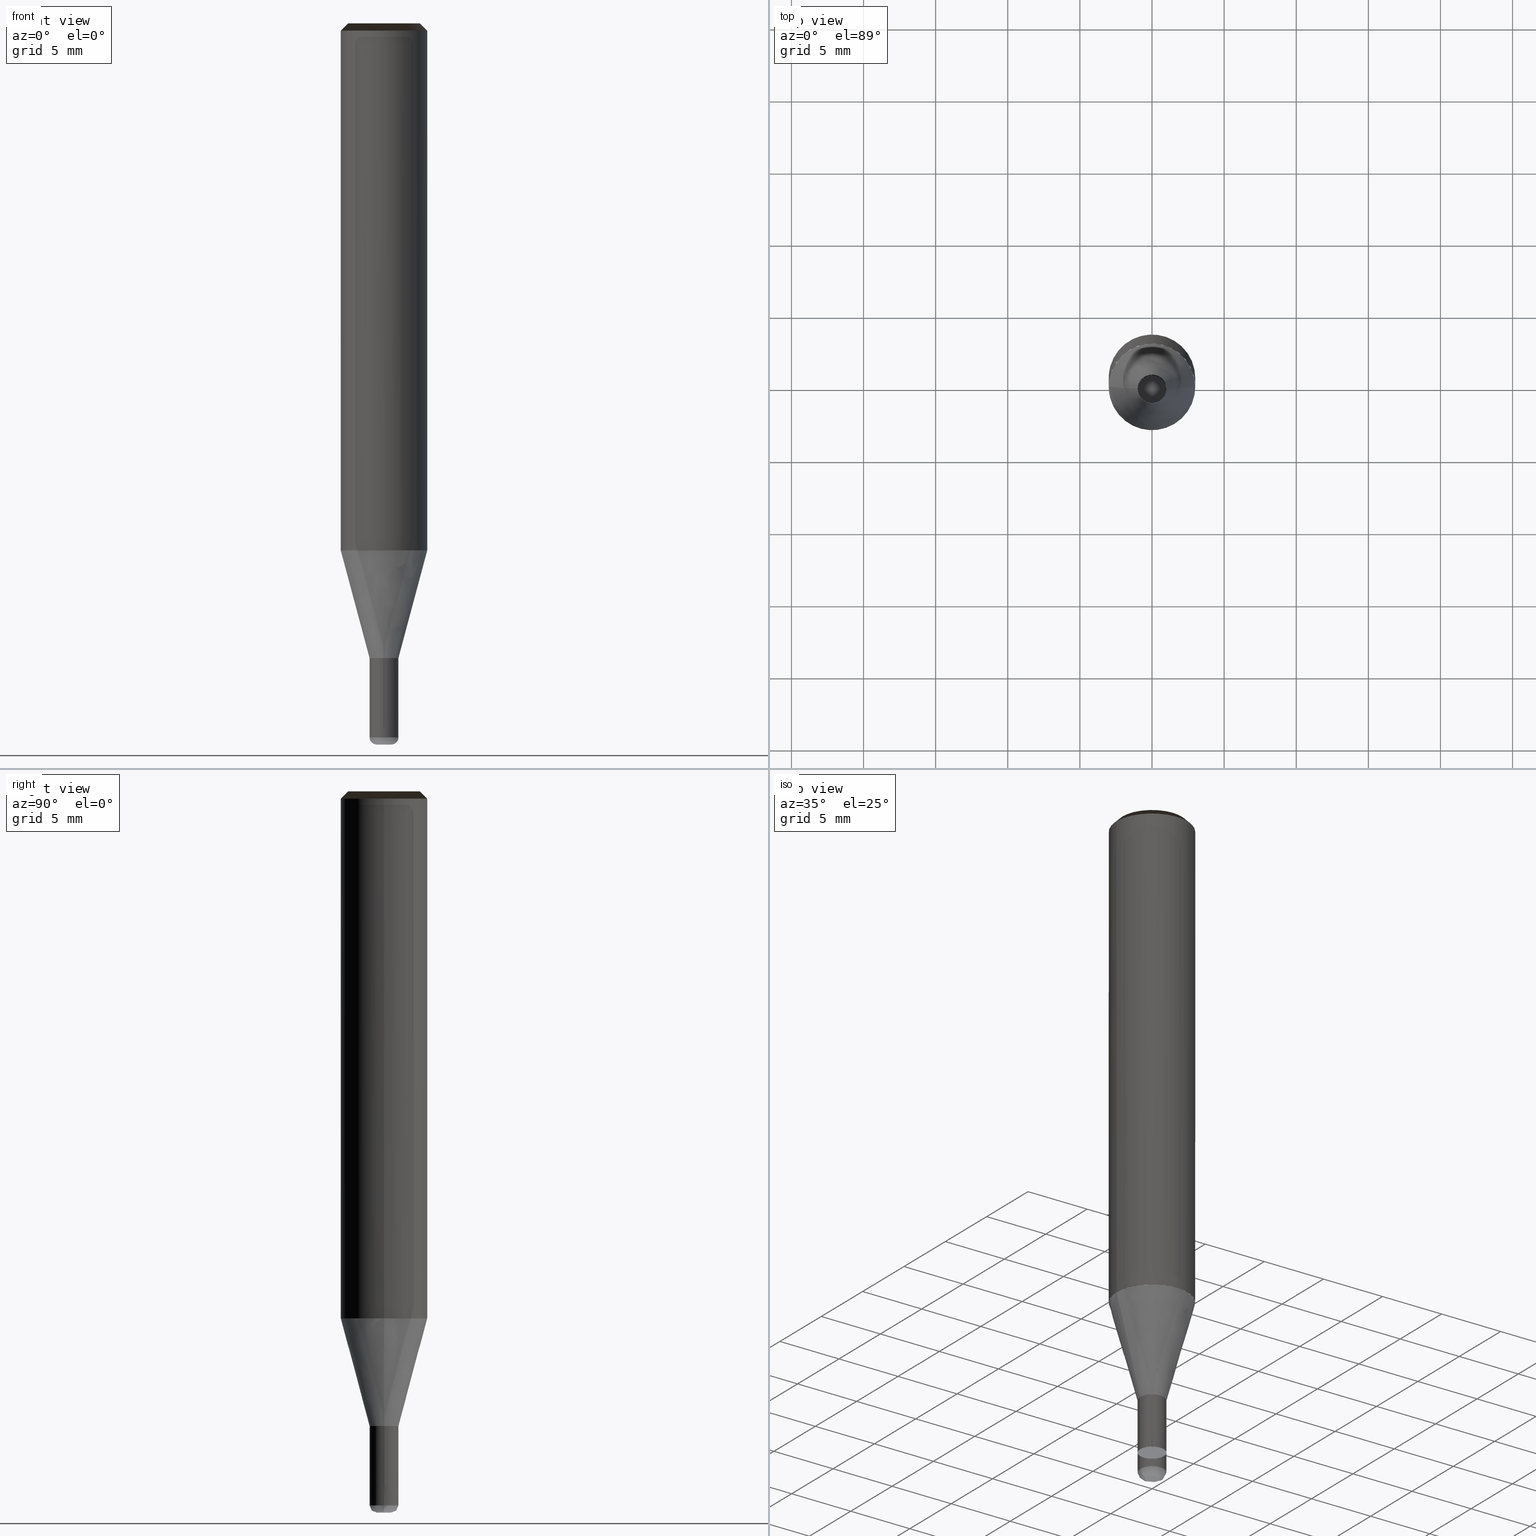
[diagram: canonical four-view strip — front | top / right | iso, engineering-drawing reading convention]
A machine part, canonical four-view strip (front | top / right | iso — engineering-drawing reading convention). The complete STEP part file that produces these views, byte-faithful:
ISO-10303-21;
HEADER;
/* Generated by ISBE GmbH (www.isbe.de) */
/* OPTION: using custom schema-name function */

FILE_DESCRIPTION(
/* description */ (''),
/* implementation_level */ '2;1');

FILE_NAME(
/*name*/ 'SHRF-4020-R005-060-STH',
/*time_stamp*/'2024-3-13T9:5:12',
/*author*/ ('ISBE GmbH'),
/*organization*/ ('ISBE GmbH'),
/*preprocessor_version*/ 'STEP IO v1.0',
/*originating_system*/ '',
/*authorisation*/ '');

FILE_SCHEMA (('AUTOMOTIVE_DESIGN'));
ENDSEC;

DATA;
#10=SHAPE_DEFINITION_REPRESENTATION(#11,#57);
#11=PRODUCT_DEFINITION_SHAPE('Document','',#13);
#12=PRODUCT_DEFINITION_CONTEXT('3D Mechanical Parts',#17,'design');
#13=PRODUCT_DEFINITION('A','First version',#14,#12);
#14=PRODUCT_DEFINITION_FORMATION_WITH_SPECIFIED_SOURCE('A','First version',#19,.MADE.);
#15=PRODUCT_RELATED_PRODUCT_CATEGORY('tool','tool',(#19));
#16=APPLICATION_PROTOCOL_DEFINITION('Draft International Standard', 'automotive_design',1999,#17);
#17=APPLICATION_CONTEXT('data for automotive mechanical design processes');
#18=PRODUCT_CONTEXT('3D Mechanical Parts',#17,'mechanical');
#19=PRODUCT('Document','Document','ISBE converted to STEP',(#18));
#20=(
LENGTH_UNIT()
NAMED_UNIT(*)
SI_UNIT(.MILLI.,.METRE.)
);
#21=(
NAMED_UNIT(*)
PLANE_ANGLE_UNIT()
SI_UNIT($,.RADIAN.)
);
#22=DIMENSIONAL_EXPONENTS(0.,0.,0.,0.,0.,0.,0.);
#23=PLANE_ANGLE_MEASURE_WITH_UNIT(PLANE_ANGLE_MEASURE(0.01745329252),#21);
#24=(
CONVERSION_BASED_UNIT('DEGREES',#23)
NAMED_UNIT(#22)
PLANE_ANGLE_UNIT()
);
#25=(
NAMED_UNIT(*)
SI_UNIT($,.STERADIAN.)
SOLID_ANGLE_UNIT()
);
#26=UNCERTAINTY_MEASURE_WITH_UNIT(LENGTH_MEASURE(0.001),#20, 'DISTANCE_ACCURACY_VALUE', 'Maximum model space distance between geometric entities at asserted connectivities');
#27=(
GEOMETRIC_REPRESENTATION_CONTEXT(3)
GLOBAL_UNCERTAINTY_ASSIGNED_CONTEXT((#26))
GLOBAL_UNIT_ASSIGNED_CONTEXT((#25,#24,#20))
REPRESENTATION_CONTEXT('ID1','3D')
);
#28=CARTESIAN_POINT('',(0.0,0.0,0.0));
#29=DIRECTION('',(1.0,0.0,0.0));
#30=DIRECTION('',(0.0,0.0,1.0));
#31=AXIS2_PLACEMENT_3D('',#28,#30,#29);
#32=CARTESIAN_POINT('',(0.0,0.0,0.0));
#33=DIRECTION('',(1.0,0.0,0.0));
#34=DIRECTION('',(0.0,0.0,1.0));
#35=AXIS2_PLACEMENT_3D('',#32,#34,#33);
#36=CARTESIAN_POINT('',(0.0,0.0,0.0));
#37=DIRECTION('',(1.0,0.0,0.0));
#38=DIRECTION('',(0.0,0.0,1.0));
#39=AXIS2_PLACEMENT_3D('',#36,#38,#37);
#40=CARTESIAN_POINT('',(0.0,0.0,0.0));
#41=DIRECTION('',(0.0,0.0,1.0));
#42=DIRECTION('',(1.0,0.0,0.0));
#43=AXIS2_PLACEMENT_3D('MCS',#40,#42,#41);
#44=CARTESIAN_POINT('',(0.0,0.0,36.535898384862));
#45=DIRECTION('',(0.0,0.0,1.0));
#46=DIRECTION('',(1.0,0.0,0.0));
#47=AXIS2_PLACEMENT_3D('PCS',#44,#46,#45);
#48=CARTESIAN_POINT('',(0.0,0.0,-13.464101615138));
#49=DIRECTION('',(0.0,0.0,1.0));
#50=DIRECTION('',(1.0,0.0,0.0));
#51=AXIS2_PLACEMENT_3D('CIP',#48,#50,#49);
#52=CARTESIAN_POINT('',(0.0,-1.0,-13.464101615138));
#53=DIRECTION('',(0.0,0.0,1.0));
#54=DIRECTION('',(1.0,0.0,0.0));
#55=AXIS2_PLACEMENT_3D('CRP',#52,#54,#53);
#57=SHAPE_REPRESENTATION('Document',(#31,#35,#39,#43,#47,#51,#55),#27);
#58=DIRECTION('',(1.0,0.0,0.0));
#59=DIRECTION('',(0.0,0.0,1.0));
#60=CARTESIAN_POINT('',(-0.009896535248,-0.001434778758,-13.464101615138));
#61=CARTESIAN_POINT('',(-0.001044694476,-0.062491268298,-13.464101615138));
#62=CARTESIAN_POINT('',(0.007980715952,-0.124744972536,-13.464101615138));
#63=CARTESIAN_POINT('',(0.016967278446,-0.186730719117,-13.464101615138));
#64=CARTESIAN_POINT('',(0.025944226633,-0.248650150019,-13.464101615138));
#65=CARTESIAN_POINT('',(0.034917338591,-0.310543120139,-13.464101615138));
#66=CARTESIAN_POINT('',(0.043888534382,-0.37242287329,-13.464101615138));
#67=CARTESIAN_POINT('',(0.052858635789,-0.434295077824,-13.464101615138));
#68=CARTESIAN_POINT('',(0.061828053416,-0.49616256591,-13.464101615138));
#69=CARTESIAN_POINT('',(0.064081864988,-0.511708464915,-13.463854895321));
#70=CARTESIAN_POINT('',(0.066333426515,-0.527238844004,-13.463114979352));
#71=CARTESIAN_POINT('',(0.068580518306,-0.542738392623,-13.461882597439));
#72=CARTESIAN_POINT('',(0.070820924877,-0.558191829249,-13.460158965795));
#73=CARTESIAN_POINT('',(0.073052437164,-0.573583916622,-13.457945785435));
#74=CARTESIAN_POINT('',(0.075272854715,-0.588899476906,-13.455245240502));
#75=CARTESIAN_POINT('',(0.077479987882,-0.604123406779,-13.452059996107));
#76=CARTESIAN_POINT('',(0.079671659997,-0.619240692437,-13.448393195702));
#77=CARTESIAN_POINT('',(0.081845709529,-0.634236424501,-13.444248457976));
#78=CARTESIAN_POINT('',(0.08399999223,-0.649095812801,-13.439629873285));
#79=CARTESIAN_POINT('',(0.086132383263,-0.663804201048,-13.434541999615));
#80=CARTESIAN_POINT('',(0.088240779304,-0.678347081355,-13.428989858082));
#81=CARTESIAN_POINT('',(0.09032310063,-0.692710108609,-13.42297892798));
#82=CARTESIAN_POINT('',(0.092377293175,-0.706879114679,-13.416515141371));
#83=CARTESIAN_POINT('',(0.094401330565,-0.720840122441,-13.409604877232));
#84=CARTESIAN_POINT('',(0.096393216123,-0.734579359609,-13.40225495516));
#85=CARTESIAN_POINT('',(0.098350984846,-0.748083272365,-13.39447262864));
#86=CARTESIAN_POINT('',(0.100272705345,-0.761338538764,-13.386265577889));
#87=CARTESIAN_POINT('',(0.10215648176,-0.77433208191,-13.377641902275));
#88=CARTESIAN_POINT('',(0.104000455633,-0.78705108289,-13.368610112325));
#89=CARTESIAN_POINT('',(0.105802807742,-0.799482993443,-13.359179121326));
#90=CARTESIAN_POINT('',(0.107561759906,-0.811615548371,-13.349358236526));
#91=CARTESIAN_POINT('',(0.109275576736,-0.823436777655,-13.339157149953));
#92=CARTESIAN_POINT('',(0.110942567355,-0.834935018293,-13.328585928848));
#93=CARTESIAN_POINT('',(0.112561087066,-0.846098925819,-13.317655005731));
#94=CARTESIAN_POINT('',(0.114129538979,-0.856917485517,-13.306375168102));
#95=CARTESIAN_POINT('',(0.115646375588,-0.867380023302,-13.2947575478));
#96=CARTESIAN_POINT('',(0.1171101003,-0.87747621627,-13.282813610012));
#97=CARTESIAN_POINT('',(0.118519268913,-0.887196102888,-13.270555141964));
#98=CARTESIAN_POINT('',(0.119872491044,-0.896530092844,-13.257994241284));
#99=CARTESIAN_POINT('',(0.1211684315,-0.905468976515,-13.245143304064));
#100=CARTESIAN_POINT('',(0.122405811602,-0.914003934063,-13.232015012627));
#101=CARTESIAN_POINT('',(0.12358341044,-0.922126544151,-13.218622323013));
#102=CARTESIAN_POINT('',(0.124700066087,-0.929828792258,-13.204978452189));
#103=CARTESIAN_POINT('',(0.125754676741,-0.937103078593,-13.191096865008));
#104=CARTESIAN_POINT('',(0.126746201816,-0.943942225603,-13.17699126092));
#105=CARTESIAN_POINT('',(0.127673662967,-0.950339485062,-13.162675560455));
#106=CARTESIAN_POINT('',(0.128536145061,-0.956288544731,-13.14816389148));
#107=CARTESIAN_POINT('',(0.129332797075,-0.961783534599,-13.13347057526));
#108=CARTESIAN_POINT('',(0.13006283294,-0.96681903267,-13.118610112325));
#109=CARTESIAN_POINT('',(0.130725532315,-0.971390070326,-13.103597168157));
#110=CARTESIAN_POINT('',(0.131320241303,-0.975492137228,-13.08844655872));
#111=CARTESIAN_POINT('',(0.131846373088,-0.979121185774,-13.073173235836));
#112=CARTESIAN_POINT('',(0.132303408526,-0.98227363509,-13.057792272431));
#113=CARTESIAN_POINT('',(0.132690896645,-0.984946374572,-13.042318847658));
#114=CARTESIAN_POINT('',(0.133008455102,-0.987136766953,-13.02676823192));
#115=CARTESIAN_POINT('',(0.133255770551,-0.988842650909,-13.011155771797));
#116=CARTESIAN_POINT('',(0.13343259896,-0.990062343195,-12.995496874902));
#117=CARTESIAN_POINT('',(0.133538765847,-0.990794640303,-12.979806994677));
#118=CARTESIAN_POINT('',(0.133574166453,-0.991038819652,-12.964101615138));
#119=CARTESIAN_POINT('',(0.154507037569,-0.987991687891,-12.885154246717));
#120=CARTESIAN_POINT('',(0.175370771404,-0.984502459386,-12.806206878296));
#121=CARTESIAN_POINT('',(0.196156032062,-0.980572695462,-12.727259509875));
#122=CARTESIAN_POINT('',(0.21685351876,-0.976204154571,-12.648312141454));
#123=CARTESIAN_POINT('',(0.237453969991,-0.971398791504,-12.569364773033));
#124=CARTESIAN_POINT('',(0.257948167669,-0.966158756518,-12.490417404611));
#125=CARTESIAN_POINT('',(0.278326941254,-0.960486394371,-12.41147003619));
#126=CARTESIAN_POINT('',(0.298581171852,-0.954384243277,-12.332522667769));
#127=CARTESIAN_POINT('',(0.318701796303,-0.947855033765,-12.253575299348));
#128=CARTESIAN_POINT('',(0.338679811227,-0.940901687461,-12.174627930927));
#129=CARTESIAN_POINT('',(0.35850627706,-0.933527315781,-12.095680562506));
#130=CARTESIAN_POINT('',(0.378172322052,-0.925735218534,-12.016733194085));
#131=CARTESIAN_POINT('',(0.397669146235,-0.917528882451,-11.937785825664));
#132=CARTESIAN_POINT('',(0.416988025364,-0.908911979624,-11.858838457243));
#133=CARTESIAN_POINT('',(0.436120314817,-0.899888365857,-11.779891088822));
#134=CARTESIAN_POINT('',(0.455057453466,-0.890462078948,-11.700943720401));
#135=CARTESIAN_POINT('',(0.47379096751,-0.880637336879,-11.62199635198));
#136=CARTESIAN_POINT('',(0.492312474259,-0.870418535929,-11.543048983559));
#137=CARTESIAN_POINT('',(0.510613685894,-0.859810248705,-11.464101615138));
#138=CARTESIAN_POINT('',(0.001434778758,-0.009896535248,-13.464101615138));
#139=CARTESIAN_POINT('',(0.062491268298,-0.001044694476,-13.464101615138));
#140=CARTESIAN_POINT('',(0.124744972536,0.007980715952,-13.464101615138));
#141=CARTESIAN_POINT('',(0.186730719117,0.016967278446,-13.464101615138));
#142=CARTESIAN_POINT('',(0.248650150019,0.025944226633,-13.464101615138));
#143=CARTESIAN_POINT('',(0.310543120139,0.034917338591,-13.464101615138));
#144=CARTESIAN_POINT('',(0.37242287329,0.043888534382,-13.464101615138));
#145=CARTESIAN_POINT('',(0.434295077824,0.052858635789,-13.464101615138));
#146=CARTESIAN_POINT('',(0.49616256591,0.061828053416,-13.464101615138));
#147=CARTESIAN_POINT('',(0.511708464915,0.064081864988,-13.463854895321));
#148=CARTESIAN_POINT('',(0.527238844004,0.066333426515,-13.463114979352));
#149=CARTESIAN_POINT('',(0.542738392623,0.068580518306,-13.461882597439));
#150=CARTESIAN_POINT('',(0.558191829249,0.070820924877,-13.460158965795));
#151=CARTESIAN_POINT('',(0.573583916622,0.073052437164,-13.457945785435));
#152=CARTESIAN_POINT('',(0.588899476906,0.075272854715,-13.455245240502));
#153=CARTESIAN_POINT('',(0.604123406779,0.077479987882,-13.452059996107));
#154=CARTESIAN_POINT('',(0.619240692437,0.079671659997,-13.448393195702));
#155=CARTESIAN_POINT('',(0.634236424501,0.081845709529,-13.444248457976));
#156=CARTESIAN_POINT('',(0.649095812801,0.08399999223,-13.439629873285));
#157=CARTESIAN_POINT('',(0.663804201048,0.086132383263,-13.434541999615));
#158=CARTESIAN_POINT('',(0.678347081355,0.088240779304,-13.428989858082));
#159=CARTESIAN_POINT('',(0.692710108609,0.09032310063,-13.42297892798));
#160=CARTESIAN_POINT('',(0.706879114679,0.092377293175,-13.416515141371));
#161=CARTESIAN_POINT('',(0.720840122441,0.094401330565,-13.409604877232));
#162=CARTESIAN_POINT('',(0.734579359609,0.096393216123,-13.40225495516));
#163=CARTESIAN_POINT('',(0.748083272365,0.098350984846,-13.39447262864));
#164=CARTESIAN_POINT('',(0.761338538764,0.100272705345,-13.386265577889));
#165=CARTESIAN_POINT('',(0.77433208191,0.10215648176,-13.377641902275));
#166=CARTESIAN_POINT('',(0.78705108289,0.104000455633,-13.368610112325));
#167=CARTESIAN_POINT('',(0.799482993443,0.105802807742,-13.359179121326));
#168=CARTESIAN_POINT('',(0.811615548371,0.107561759906,-13.349358236526));
#169=CARTESIAN_POINT('',(0.823436777655,0.109275576736,-13.339157149953));
#170=CARTESIAN_POINT('',(0.834935018293,0.110942567355,-13.328585928848));
#171=CARTESIAN_POINT('',(0.846098925819,0.112561087066,-13.317655005731));
#172=CARTESIAN_POINT('',(0.856917485517,0.114129538979,-13.306375168102));
#173=CARTESIAN_POINT('',(0.867380023302,0.115646375588,-13.2947575478));
#174=CARTESIAN_POINT('',(0.87747621627,0.1171101003,-13.282813610012));
#175=CARTESIAN_POINT('',(0.887196102888,0.118519268913,-13.270555141964));
#176=CARTESIAN_POINT('',(0.896530092844,0.119872491044,-13.257994241284));
#177=CARTESIAN_POINT('',(0.905468976515,0.1211684315,-13.245143304064));
#178=CARTESIAN_POINT('',(0.914003934063,0.122405811602,-13.232015012627));
#179=CARTESIAN_POINT('',(0.922126544151,0.12358341044,-13.218622323013));
#180=CARTESIAN_POINT('',(0.929828792258,0.124700066087,-13.204978452189));
#181=CARTESIAN_POINT('',(0.937103078593,0.125754676741,-13.191096865008));
#182=CARTESIAN_POINT('',(0.943942225603,0.126746201816,-13.17699126092));
#183=CARTESIAN_POINT('',(0.950339485062,0.127673662967,-13.162675560455));
#184=CARTESIAN_POINT('',(0.956288544731,0.128536145061,-13.14816389148));
#185=CARTESIAN_POINT('',(0.961783534599,0.129332797075,-13.13347057526));
#186=CARTESIAN_POINT('',(0.96681903267,0.13006283294,-13.118610112325));
#187=CARTESIAN_POINT('',(0.971390070326,0.130725532315,-13.103597168157));
#188=CARTESIAN_POINT('',(0.975492137228,0.131320241303,-13.08844655872));
#189=CARTESIAN_POINT('',(0.979121185774,0.131846373088,-13.073173235836));
#190=CARTESIAN_POINT('',(0.98227363509,0.132303408526,-13.057792272431));
#191=CARTESIAN_POINT('',(0.984946374572,0.132690896645,-13.042318847658));
#192=CARTESIAN_POINT('',(0.987136766953,0.133008455102,-13.02676823192));
#193=CARTESIAN_POINT('',(0.988842650909,0.133255770551,-13.011155771797));
#194=CARTESIAN_POINT('',(0.990062343195,0.13343259896,-12.995496874902));
#195=CARTESIAN_POINT('',(0.990794640303,0.133538765847,-12.979806994677));
#196=CARTESIAN_POINT('',(0.991038819652,0.133574166453,-12.964101615138));
#197=CARTESIAN_POINT('',(0.987991687891,0.154507037569,-12.885154246717));
#198=CARTESIAN_POINT('',(0.984502459386,0.175370771404,-12.806206878296));
#199=CARTESIAN_POINT('',(0.980572695462,0.196156032062,-12.727259509875));
#200=CARTESIAN_POINT('',(0.976204154571,0.21685351876,-12.648312141454));
#201=CARTESIAN_POINT('',(0.971398791504,0.237453969991,-12.569364773033));
#202=CARTESIAN_POINT('',(0.966158756518,0.257948167669,-12.490417404611));
#203=CARTESIAN_POINT('',(0.960486394371,0.278326941254,-12.41147003619));
#204=CARTESIAN_POINT('',(0.954384243277,0.298581171852,-12.332522667769));
#205=CARTESIAN_POINT('',(0.947855033765,0.318701796303,-12.253575299348));
#206=CARTESIAN_POINT('',(0.940901687461,0.338679811227,-12.174627930927));
#207=CARTESIAN_POINT('',(0.933527315781,0.35850627706,-12.095680562506));
#208=CARTESIAN_POINT('',(0.925735218534,0.378172322052,-12.016733194085));
#209=CARTESIAN_POINT('',(0.917528882451,0.397669146235,-11.937785825664));
#210=CARTESIAN_POINT('',(0.908911979624,0.416988025364,-11.858838457243));
#211=CARTESIAN_POINT('',(0.899888365857,0.436120314817,-11.779891088822));
#212=CARTESIAN_POINT('',(0.890462078948,0.455057453466,-11.700943720401));
#213=CARTESIAN_POINT('',(0.880637336879,0.47379096751,-11.62199635198));
#214=CARTESIAN_POINT('',(0.870418535929,0.492312474259,-11.543048983559));
#215=CARTESIAN_POINT('',(0.859810248705,0.510613685894,-11.464101615138));
#216=CARTESIAN_POINT('',(0.009896535248,0.001434778758,-13.464101615138));
#217=CARTESIAN_POINT('',(0.001044694476,0.062491268298,-13.464101615138));
#218=CARTESIAN_POINT('',(-0.007980715952,0.124744972536,-13.464101615138));
#219=CARTESIAN_POINT('',(-0.016967278446,0.186730719117,-13.464101615138));
#220=CARTESIAN_POINT('',(-0.025944226633,0.248650150019,-13.464101615138));
#221=CARTESIAN_POINT('',(-0.034917338591,0.310543120139,-13.464101615138));
#222=CARTESIAN_POINT('',(-0.043888534382,0.37242287329,-13.464101615138));
#223=CARTESIAN_POINT('',(-0.052858635789,0.434295077824,-13.464101615138));
#224=CARTESIAN_POINT('',(-0.061828053416,0.49616256591,-13.464101615138));
#225=CARTESIAN_POINT('',(-0.064081864988,0.511708464915,-13.463854895321));
#226=CARTESIAN_POINT('',(-0.066333426515,0.527238844004,-13.463114979352));
#227=CARTESIAN_POINT('',(-0.068580518306,0.542738392623,-13.461882597439));
#228=CARTESIAN_POINT('',(-0.070820924877,0.558191829249,-13.460158965795));
#229=CARTESIAN_POINT('',(-0.073052437164,0.573583916622,-13.457945785435));
#230=CARTESIAN_POINT('',(-0.075272854715,0.588899476906,-13.455245240502));
#231=CARTESIAN_POINT('',(-0.077479987882,0.604123406779,-13.452059996107));
#232=CARTESIAN_POINT('',(-0.079671659997,0.619240692437,-13.448393195702));
#233=CARTESIAN_POINT('',(-0.081845709529,0.634236424501,-13.444248457976));
#234=CARTESIAN_POINT('',(-0.08399999223,0.649095812801,-13.439629873285));
#235=CARTESIAN_POINT('',(-0.086132383263,0.663804201048,-13.434541999615));
#236=CARTESIAN_POINT('',(-0.088240779304,0.678347081355,-13.428989858082));
#237=CARTESIAN_POINT('',(-0.09032310063,0.692710108609,-13.42297892798));
#238=CARTESIAN_POINT('',(-0.092377293175,0.706879114679,-13.416515141371));
#239=CARTESIAN_POINT('',(-0.094401330565,0.720840122441,-13.409604877232));
#240=CARTESIAN_POINT('',(-0.096393216123,0.734579359609,-13.40225495516));
#241=CARTESIAN_POINT('',(-0.098350984846,0.748083272365,-13.39447262864));
#242=CARTESIAN_POINT('',(-0.100272705345,0.761338538764,-13.386265577889));
#243=CARTESIAN_POINT('',(-0.10215648176,0.77433208191,-13.377641902275));
#244=CARTESIAN_POINT('',(-0.104000455633,0.78705108289,-13.368610112325));
#245=CARTESIAN_POINT('',(-0.105802807742,0.799482993443,-13.359179121326));
#246=CARTESIAN_POINT('',(-0.107561759906,0.811615548371,-13.349358236526));
#247=CARTESIAN_POINT('',(-0.109275576736,0.823436777655,-13.339157149953));
#248=CARTESIAN_POINT('',(-0.110942567355,0.834935018293,-13.328585928848));
#249=CARTESIAN_POINT('',(-0.112561087066,0.846098925819,-13.317655005731));
#250=CARTESIAN_POINT('',(-0.114129538979,0.856917485517,-13.306375168102));
#251=CARTESIAN_POINT('',(-0.115646375588,0.867380023302,-13.2947575478));
#252=CARTESIAN_POINT('',(-0.1171101003,0.87747621627,-13.282813610012));
#253=CARTESIAN_POINT('',(-0.118519268913,0.887196102888,-13.270555141964));
#254=CARTESIAN_POINT('',(-0.119872491044,0.896530092844,-13.257994241284));
#255=CARTESIAN_POINT('',(-0.1211684315,0.905468976515,-13.245143304064));
#256=CARTESIAN_POINT('',(-0.122405811602,0.914003934063,-13.232015012627));
#257=CARTESIAN_POINT('',(-0.12358341044,0.922126544151,-13.218622323013));
#258=CARTESIAN_POINT('',(-0.124700066087,0.929828792258,-13.204978452189));
#259=CARTESIAN_POINT('',(-0.125754676741,0.937103078593,-13.191096865008));
#260=CARTESIAN_POINT('',(-0.126746201816,0.943942225603,-13.17699126092));
#261=CARTESIAN_POINT('',(-0.127673662967,0.950339485062,-13.162675560455));
#262=CARTESIAN_POINT('',(-0.128536145061,0.956288544731,-13.14816389148));
#263=CARTESIAN_POINT('',(-0.129332797075,0.961783534599,-13.13347057526));
#264=CARTESIAN_POINT('',(-0.13006283294,0.96681903267,-13.118610112325));
#265=CARTESIAN_POINT('',(-0.130725532315,0.971390070326,-13.103597168157));
#266=CARTESIAN_POINT('',(-0.131320241303,0.975492137228,-13.08844655872));
#267=CARTESIAN_POINT('',(-0.131846373088,0.979121185774,-13.073173235836));
#268=CARTESIAN_POINT('',(-0.132303408526,0.98227363509,-13.057792272431));
#269=CARTESIAN_POINT('',(-0.132690896645,0.984946374572,-13.042318847658));
#270=CARTESIAN_POINT('',(-0.133008455102,0.987136766953,-13.02676823192));
#271=CARTESIAN_POINT('',(-0.133255770551,0.988842650909,-13.011155771797));
#272=CARTESIAN_POINT('',(-0.13343259896,0.990062343195,-12.995496874902));
#273=CARTESIAN_POINT('',(-0.133538765847,0.990794640303,-12.979806994677));
#274=CARTESIAN_POINT('',(-0.133574166453,0.991038819652,-12.964101615138));
#275=CARTESIAN_POINT('',(-0.154507037569,0.987991687891,-12.885154246717));
#276=CARTESIAN_POINT('',(-0.175370771404,0.984502459386,-12.806206878296));
#277=CARTESIAN_POINT('',(-0.196156032062,0.980572695462,-12.727259509875));
#278=CARTESIAN_POINT('',(-0.21685351876,0.976204154571,-12.648312141454));
#279=CARTESIAN_POINT('',(-0.237453969991,0.971398791504,-12.569364773033));
#280=CARTESIAN_POINT('',(-0.257948167669,0.966158756518,-12.490417404611));
#281=CARTESIAN_POINT('',(-0.278326941254,0.960486394371,-12.41147003619));
#282=CARTESIAN_POINT('',(-0.298581171852,0.954384243277,-12.332522667769));
#283=CARTESIAN_POINT('',(-0.318701796303,0.947855033765,-12.253575299348));
#284=CARTESIAN_POINT('',(-0.338679811227,0.940901687461,-12.174627930927));
#285=CARTESIAN_POINT('',(-0.35850627706,0.933527315781,-12.095680562506));
#286=CARTESIAN_POINT('',(-0.378172322052,0.925735218534,-12.016733194085));
#287=CARTESIAN_POINT('',(-0.397669146235,0.917528882451,-11.937785825664));
#288=CARTESIAN_POINT('',(-0.416988025364,0.908911979624,-11.858838457243));
#289=CARTESIAN_POINT('',(-0.436120314817,0.899888365857,-11.779891088822));
#290=CARTESIAN_POINT('',(-0.455057453466,0.890462078948,-11.700943720401));
#291=CARTESIAN_POINT('',(-0.47379096751,0.880637336879,-11.62199635198));
#292=CARTESIAN_POINT('',(-0.492312474259,0.870418535929,-11.543048983559));
#293=CARTESIAN_POINT('',(-0.510613685894,0.859810248705,-11.464101615138));
#294=CARTESIAN_POINT('',(-0.001434778758,0.009896535248,-13.464101615138));
#295=CARTESIAN_POINT('',(-0.062491268298,0.001044694476,-13.464101615138));
#296=CARTESIAN_POINT('',(-0.124744972536,-0.007980715952,-13.464101615138));
#297=CARTESIAN_POINT('',(-0.186730719117,-0.016967278446,-13.464101615138));
#298=CARTESIAN_POINT('',(-0.248650150019,-0.025944226633,-13.464101615138));
#299=CARTESIAN_POINT('',(-0.310543120139,-0.034917338591,-13.464101615138));
#300=CARTESIAN_POINT('',(-0.37242287329,-0.043888534382,-13.464101615138));
#301=CARTESIAN_POINT('',(-0.434295077824,-0.052858635789,-13.464101615138));
#302=CARTESIAN_POINT('',(-0.49616256591,-0.061828053416,-13.464101615138));
#303=CARTESIAN_POINT('',(-0.511708464915,-0.064081864988,-13.463854895321));
#304=CARTESIAN_POINT('',(-0.527238844004,-0.066333426515,-13.463114979352));
#305=CARTESIAN_POINT('',(-0.542738392623,-0.068580518306,-13.461882597439));
#306=CARTESIAN_POINT('',(-0.558191829249,-0.070820924877,-13.460158965795));
#307=CARTESIAN_POINT('',(-0.573583916622,-0.073052437164,-13.457945785435));
#308=CARTESIAN_POINT('',(-0.588899476906,-0.075272854715,-13.455245240502));
#309=CARTESIAN_POINT('',(-0.604123406779,-0.077479987882,-13.452059996107));
#310=CARTESIAN_POINT('',(-0.619240692437,-0.079671659997,-13.448393195702));
#311=CARTESIAN_POINT('',(-0.634236424501,-0.081845709529,-13.444248457976));
#312=CARTESIAN_POINT('',(-0.649095812801,-0.08399999223,-13.439629873285));
#313=CARTESIAN_POINT('',(-0.663804201048,-0.086132383263,-13.434541999615));
#314=CARTESIAN_POINT('',(-0.678347081355,-0.088240779304,-13.428989858082));
#315=CARTESIAN_POINT('',(-0.692710108609,-0.09032310063,-13.42297892798));
#316=CARTESIAN_POINT('',(-0.706879114679,-0.092377293175,-13.416515141371));
#317=CARTESIAN_POINT('',(-0.720840122441,-0.094401330565,-13.409604877232));
#318=CARTESIAN_POINT('',(-0.734579359609,-0.096393216123,-13.40225495516));
#319=CARTESIAN_POINT('',(-0.748083272365,-0.098350984846,-13.39447262864));
#320=CARTESIAN_POINT('',(-0.761338538764,-0.100272705345,-13.386265577889));
#321=CARTESIAN_POINT('',(-0.77433208191,-0.10215648176,-13.377641902275));
#322=CARTESIAN_POINT('',(-0.78705108289,-0.104000455633,-13.368610112325));
#323=CARTESIAN_POINT('',(-0.799482993443,-0.105802807742,-13.359179121326));
#324=CARTESIAN_POINT('',(-0.811615548371,-0.107561759906,-13.349358236526));
#325=CARTESIAN_POINT('',(-0.823436777655,-0.109275576736,-13.339157149953));
#326=CARTESIAN_POINT('',(-0.834935018293,-0.110942567355,-13.328585928848));
#327=CARTESIAN_POINT('',(-0.846098925819,-0.112561087066,-13.317655005731));
#328=CARTESIAN_POINT('',(-0.856917485517,-0.114129538979,-13.306375168102));
#329=CARTESIAN_POINT('',(-0.867380023302,-0.115646375588,-13.2947575478));
#330=CARTESIAN_POINT('',(-0.87747621627,-0.1171101003,-13.282813610012));
#331=CARTESIAN_POINT('',(-0.887196102888,-0.118519268913,-13.270555141964));
#332=CARTESIAN_POINT('',(-0.896530092844,-0.119872491044,-13.257994241284));
#333=CARTESIAN_POINT('',(-0.905468976515,-0.1211684315,-13.245143304064));
#334=CARTESIAN_POINT('',(-0.914003934063,-0.122405811602,-13.232015012627));
#335=CARTESIAN_POINT('',(-0.922126544151,-0.12358341044,-13.218622323013));
#336=CARTESIAN_POINT('',(-0.929828792258,-0.124700066087,-13.204978452189));
#337=CARTESIAN_POINT('',(-0.937103078593,-0.125754676741,-13.191096865008));
#338=CARTESIAN_POINT('',(-0.943942225603,-0.126746201816,-13.17699126092));
#339=CARTESIAN_POINT('',(-0.950339485062,-0.127673662967,-13.162675560455));
#340=CARTESIAN_POINT('',(-0.956288544731,-0.128536145061,-13.14816389148));
#341=CARTESIAN_POINT('',(-0.961783534599,-0.129332797075,-13.13347057526));
#342=CARTESIAN_POINT('',(-0.96681903267,-0.13006283294,-13.118610112325));
#343=CARTESIAN_POINT('',(-0.971390070326,-0.130725532315,-13.103597168157));
#344=CARTESIAN_POINT('',(-0.975492137228,-0.131320241303,-13.08844655872));
#345=CARTESIAN_POINT('',(-0.979121185774,-0.131846373088,-13.073173235836));
#346=CARTESIAN_POINT('',(-0.98227363509,-0.132303408526,-13.057792272431));
#347=CARTESIAN_POINT('',(-0.984946374572,-0.132690896645,-13.042318847658));
#348=CARTESIAN_POINT('',(-0.987136766953,-0.133008455102,-13.02676823192));
#349=CARTESIAN_POINT('',(-0.988842650909,-0.133255770551,-13.011155771797));
#350=CARTESIAN_POINT('',(-0.990062343195,-0.13343259896,-12.995496874902));
#351=CARTESIAN_POINT('',(-0.990794640303,-0.133538765847,-12.979806994677));
#352=CARTESIAN_POINT('',(-0.991038819652,-0.133574166453,-12.964101615138));
#353=CARTESIAN_POINT('',(-0.987991687891,-0.154507037569,-12.885154246717));
#354=CARTESIAN_POINT('',(-0.984502459386,-0.175370771404,-12.806206878296));
#355=CARTESIAN_POINT('',(-0.980572695462,-0.196156032062,-12.727259509875));
#356=CARTESIAN_POINT('',(-0.976204154571,-0.21685351876,-12.648312141454));
#357=CARTESIAN_POINT('',(-0.971398791504,-0.237453969991,-12.569364773033));
#358=CARTESIAN_POINT('',(-0.966158756518,-0.257948167669,-12.490417404611));
#359=CARTESIAN_POINT('',(-0.960486394371,-0.278326941254,-12.41147003619));
#360=CARTESIAN_POINT('',(-0.954384243277,-0.298581171852,-12.332522667769));
#361=CARTESIAN_POINT('',(-0.947855033765,-0.318701796303,-12.253575299348));
#362=CARTESIAN_POINT('',(-0.940901687461,-0.338679811227,-12.174627930927));
#363=CARTESIAN_POINT('',(-0.933527315781,-0.35850627706,-12.095680562506));
#364=CARTESIAN_POINT('',(-0.925735218534,-0.378172322052,-12.016733194085));
#365=CARTESIAN_POINT('',(-0.917528882451,-0.397669146235,-11.937785825664));
#366=CARTESIAN_POINT('',(-0.908911979624,-0.416988025364,-11.858838457243));
#367=CARTESIAN_POINT('',(-0.899888365857,-0.436120314817,-11.779891088822));
#368=CARTESIAN_POINT('',(-0.890462078948,-0.455057453466,-11.700943720401));
#369=CARTESIAN_POINT('',(-0.880637336879,-0.47379096751,-11.62199635198));
#370=CARTESIAN_POINT('',(-0.870418535929,-0.492312474259,-11.543048983559));
#371=CARTESIAN_POINT('',(-0.859810248705,-0.510613685894,-11.464101615138));
#372=CARTESIAN_POINT('',(0.0,0.0,-13.464101615138));
#373=CARTESIAN_POINT('',(0.5,0.0,-13.464101615138));
#374=CARTESIAN_POINT('',(0.5,0.5,-13.464101615138));
#375=CARTESIAN_POINT('',(0.0,0.5,-13.464101615138));
#376=CARTESIAN_POINT('',(-0.5,0.5,-13.464101615138));
#377=CARTESIAN_POINT('',(-0.5,0.0,-13.464101615138));
#378=CARTESIAN_POINT('',(1.0,0.0,-13.464101615138));
#379=CARTESIAN_POINT('',(1.0,1.0,-13.464101615138));
#380=CARTESIAN_POINT('',(0.0,1.0,-13.464101615138));
#381=CARTESIAN_POINT('',(-1.0,1.0,-13.464101615138));
#382=CARTESIAN_POINT('',(-1.0,0.0,-13.464101615138));
#383=CARTESIAN_POINT('',(1.0,0.0,-12.964101615138));
#384=CARTESIAN_POINT('',(1.0,1.0,-12.964101615138));
#385=CARTESIAN_POINT('',(0.0,1.0,-12.964101615138));
#386=CARTESIAN_POINT('',(-1.0,1.0,-12.964101615138));
#387=CARTESIAN_POINT('',(-1.0,0.0,-12.964101615138));
#388=CARTESIAN_POINT('',(1.0,0.0,-11.464101615138));
#389=CARTESIAN_POINT('',(1.0,1.0,-11.464101615138));
#390=CARTESIAN_POINT('',(0.0,1.0,-11.464101615138));
#391=CARTESIAN_POINT('',(-1.0,1.0,-11.464101615138));
#392=CARTESIAN_POINT('',(-1.0,0.0,-11.464101615138));
#393=CARTESIAN_POINT('',(0.0,0.0,-11.464101615138));
#394=CARTESIAN_POINT('',(-0.5,-0.5,-13.464101615138));
#395=CARTESIAN_POINT('',(0.0,-0.5,-13.464101615138));
#396=CARTESIAN_POINT('',(0.5,-0.5,-13.464101615138));
#397=CARTESIAN_POINT('',(-1.0,-1.0,-13.464101615138));
#398=CARTESIAN_POINT('',(0.0,-1.0,-13.464101615138));
#399=CARTESIAN_POINT('',(1.0,-1.0,-13.464101615138));
#400=CARTESIAN_POINT('',(-1.0,-1.0,-12.964101615138));
#401=CARTESIAN_POINT('',(0.0,-1.0,-12.964101615138));
#402=CARTESIAN_POINT('',(1.0,-1.0,-12.964101615138));
#403=CARTESIAN_POINT('',(-1.0,-1.0,-11.464101615138));
#404=CARTESIAN_POINT('',(0.0,-1.0,-11.464101615138));
#405=CARTESIAN_POINT('',(1.0,-1.0,-11.464101615138));
#406=CARTESIAN_POINT('',(1.0,0.0,-7.464101615138));
#407=CARTESIAN_POINT('',(1.0,1.0,-7.464101615138));
#408=CARTESIAN_POINT('',(0.0,1.0,-7.464101615138));
#409=CARTESIAN_POINT('',(-1.0,1.0,-7.464101615138));
#410=CARTESIAN_POINT('',(-1.0,0.0,-7.464101615138));
#411=CARTESIAN_POINT('',(3.0,0.0,0.0));
#412=CARTESIAN_POINT('',(3.0,3.0,0.0));
#413=CARTESIAN_POINT('',(0.0,3.0,0.0));
#414=CARTESIAN_POINT('',(-3.0,3.0,0.0));
#415=CARTESIAN_POINT('',(-3.0,0.0,0.0));
#416=CARTESIAN_POINT('',(3.0,0.0,36.035898384862));
#417=CARTESIAN_POINT('',(3.0,3.0,36.035898384862));
#418=CARTESIAN_POINT('',(0.0,3.0,36.035898384862));
#419=CARTESIAN_POINT('',(-3.0,3.0,36.035898384862));
#420=CARTESIAN_POINT('',(-3.0,0.0,36.035898384862));
#421=CARTESIAN_POINT('',(2.5,0.0,36.535898384862));
#422=CARTESIAN_POINT('',(2.5,2.5,36.535898384862));
#423=CARTESIAN_POINT('',(0.0,2.5,36.535898384862));
#424=CARTESIAN_POINT('',(-2.5,2.5,36.535898384862));
#425=CARTESIAN_POINT('',(-2.5,0.0,36.535898384862));
#426=CARTESIAN_POINT('',(0.0,0.0,36.535898384862));
#427=CARTESIAN_POINT('',(-1.0,-1.0,-7.464101615138));
#428=CARTESIAN_POINT('',(0.0,-1.0,-7.464101615138));
#429=CARTESIAN_POINT('',(1.0,-1.0,-7.464101615138));
#430=CARTESIAN_POINT('',(-3.0,-3.0,0.0));
#431=CARTESIAN_POINT('',(0.0,-3.0,0.0));
#432=CARTESIAN_POINT('',(3.0,-3.0,0.0));
#433=CARTESIAN_POINT('',(-3.0,-3.0,36.035898384862));
#434=CARTESIAN_POINT('',(0.0,-3.0,36.035898384862));
#435=CARTESIAN_POINT('',(3.0,-3.0,36.035898384862));
#436=CARTESIAN_POINT('',(-2.5,-2.5,36.535898384862));
#437=CARTESIAN_POINT('',(0.0,-2.5,36.535898384862));
#438=CARTESIAN_POINT('',(2.5,-2.5,36.535898384862));
#439=(
BOUNDED_CURVE()
B_SPLINE_CURVE(1,(#60,#61,#62,#63,#64,#65,#66,#67,#68,#69,#70,#71,#72,#73,#74,#75,#76,#77,#78,#79,#80,#81,#82,#83,#84,#85,#86,#87,#88,#89,#90,#91,#92,#93,#94,#95,#96,#97,#98,#99,#100,#101,#102,#103,#104,#105,#106,#107,#108,#109,#110,#111,#112,#113,#114,#115,#116,#117,#118,#119,#120,#121,#122,#123,#124,#125,#126,#127,#128,#129,#130,#131,#132,#133,#134,#135,#136,#137),.UNSPECIFIED.,.F.,.F.)
B_SPLINE_CURVE_WITH_KNOTS((2,1,1,1,1,1,1,1,1,1,1,1,1,1,1,1,1,1,1,1,1,1,1,1,1,1,1,1,1,1,1,1,1,1,1,1,1,1,1,1,1,1,1,1,1,1,1,1,1,1,1,1,1,1,1,1,1,1,1,1,1,1,1,1,1,1,1,1,1,1,1,1,1,1,1,1,1,2),
(0.0,0.021737141304,0.043900511257,0.065968483759,0.08801284676,0.110047789275,0.132078026326,0.154105575943,0.176131446424,0.181666731594,0.18720195135,0.192737109594,0.198272209943,0.203807255757,0.209342250164,0.214877196077,0.220412096216,0.22594695312,0.231481769169,0.237016546592,0.242551287482,0.248085993803,0.253620667408,0.25915531004,0.264689923345,0.270224508878,0.275759068111,0.281293602437,0.286828113179,0.292362601594,0.297897068875,0.303431516162,0.308965944539,0.314500355044,0.320034748667,0.325569126358,0.331103489028,0.336637837551,0.342172172768,0.347706495489,0.353240806496,0.358775106544,0.364309396365,0.369843676665,0.375377948133,0.380912211437,0.386446467229,0.391980716144,0.397514958803,0.403049195815,0.408583427777,0.414117655274,0.419651878884,0.425186099176,0.430720316715,0.436254532056,0.441788745753,0.447322958356,0.452857170413,0.481654161444,0.510451152475,0.539248143505,0.568045134536,0.596842125567,0.625639116598,0.654436107629,0.68323309866,0.712030089691,0.740827080722,0.769624071753,0.798421062784,0.827218053815,0.856015044845,0.884812035876,0.913609026907,0.942406017938,0.971203008969,1.0),.UNSPECIFIED.)
CURVE()
GEOMETRIC_REPRESENTATION_ITEM()
RATIONAL_B_SPLINE_CURVE((1.0,1.0,1.0,1.0,1.0,1.0,1.0,1.0,1.0,1.0,1.0,1.0,1.0,1.0,1.0,1.0,1.0,1.0,1.0,1.0,1.0,1.0,1.0,1.0,1.0,1.0,1.0,1.0,1.0,1.0,1.0,1.0,1.0,1.0,1.0,1.0,1.0,1.0,1.0,1.0,1.0,1.0,1.0,1.0,1.0,1.0,1.0,1.0,1.0,1.0,1.0,1.0,1.0,1.0,1.0,1.0,1.0,1.0,1.0,1.0,1.0,1.0,1.0,1.0,1.0,1.0,1.0,1.0,1.0,1.0,1.0,1.0,1.0,1.0,1.0,1.0,1.0,1.0))
REPRESENTATION_ITEM('')
);
#440=(
BOUNDED_CURVE()
B_SPLINE_CURVE(1,(#138,#139,#140,#141,#142,#143,#144,#145,#146,#147,#148,#149,#150,#151,#152,#153,#154,#155,#156,#157,#158,#159,#160,#161,#162,#163,#164,#165,#166,#167,#168,#169,#170,#171,#172,#173,#174,#175,#176,#177,#178,#179,#180,#181,#182,#183,#184,#185,#186,#187,#188,#189,#190,#191,#192,#193,#194,#195,#196,#197,#198,#199,#200,#201,#202,#203,#204,#205,#206,#207,#208,#209,#210,#211,#212,#213,#214,#215),.UNSPECIFIED.,.F.,.F.)
B_SPLINE_CURVE_WITH_KNOTS((2,1,1,1,1,1,1,1,1,1,1,1,1,1,1,1,1,1,1,1,1,1,1,1,1,1,1,1,1,1,1,1,1,1,1,1,1,1,1,1,1,1,1,1,1,1,1,1,1,1,1,1,1,1,1,1,1,1,1,1,1,1,1,1,1,1,1,1,1,1,1,1,1,1,1,1,1,2),
(0.0,0.021737141304,0.043900511257,0.065968483759,0.08801284676,0.110047789275,0.132078026326,0.154105575943,0.176131446424,0.181666731594,0.18720195135,0.192737109594,0.198272209943,0.203807255757,0.209342250164,0.214877196077,0.220412096216,0.22594695312,0.231481769169,0.237016546592,0.242551287482,0.248085993803,0.253620667408,0.25915531004,0.264689923345,0.270224508878,0.275759068111,0.281293602437,0.286828113179,0.292362601594,0.297897068875,0.303431516162,0.308965944539,0.314500355044,0.320034748667,0.325569126358,0.331103489028,0.336637837551,0.342172172768,0.347706495489,0.353240806496,0.358775106544,0.364309396365,0.369843676665,0.375377948133,0.380912211437,0.386446467229,0.391980716144,0.397514958803,0.403049195815,0.408583427777,0.414117655274,0.419651878884,0.425186099176,0.430720316715,0.436254532056,0.441788745753,0.447322958356,0.452857170413,0.481654161444,0.510451152475,0.539248143505,0.568045134536,0.596842125567,0.625639116598,0.654436107629,0.68323309866,0.712030089691,0.740827080722,0.769624071753,0.798421062784,0.827218053815,0.856015044845,0.884812035876,0.913609026907,0.942406017938,0.971203008969,1.0),.UNSPECIFIED.)
CURVE()
GEOMETRIC_REPRESENTATION_ITEM()
RATIONAL_B_SPLINE_CURVE((1.0,1.0,1.0,1.0,1.0,1.0,1.0,1.0,1.0,1.0,1.0,1.0,1.0,1.0,1.0,1.0,1.0,1.0,1.0,1.0,1.0,1.0,1.0,1.0,1.0,1.0,1.0,1.0,1.0,1.0,1.0,1.0,1.0,1.0,1.0,1.0,1.0,1.0,1.0,1.0,1.0,1.0,1.0,1.0,1.0,1.0,1.0,1.0,1.0,1.0,1.0,1.0,1.0,1.0,1.0,1.0,1.0,1.0,1.0,1.0,1.0,1.0,1.0,1.0,1.0,1.0,1.0,1.0,1.0,1.0,1.0,1.0,1.0,1.0,1.0,1.0,1.0,1.0))
REPRESENTATION_ITEM('')
);
#441=(
BOUNDED_CURVE()
B_SPLINE_CURVE(1,(#216,#217,#218,#219,#220,#221,#222,#223,#224,#225,#226,#227,#228,#229,#230,#231,#232,#233,#234,#235,#236,#237,#238,#239,#240,#241,#242,#243,#244,#245,#246,#247,#248,#249,#250,#251,#252,#253,#254,#255,#256,#257,#258,#259,#260,#261,#262,#263,#264,#265,#266,#267,#268,#269,#270,#271,#272,#273,#274,#275,#276,#277,#278,#279,#280,#281,#282,#283,#284,#285,#286,#287,#288,#289,#290,#291,#292,#293),.UNSPECIFIED.,.F.,.F.)
B_SPLINE_CURVE_WITH_KNOTS((2,1,1,1,1,1,1,1,1,1,1,1,1,1,1,1,1,1,1,1,1,1,1,1,1,1,1,1,1,1,1,1,1,1,1,1,1,1,1,1,1,1,1,1,1,1,1,1,1,1,1,1,1,1,1,1,1,1,1,1,1,1,1,1,1,1,1,1,1,1,1,1,1,1,1,1,1,2),
(0.0,0.021737141304,0.043900511257,0.065968483759,0.08801284676,0.110047789275,0.132078026326,0.154105575943,0.176131446424,0.181666731594,0.18720195135,0.192737109594,0.198272209943,0.203807255757,0.209342250164,0.214877196077,0.220412096216,0.22594695312,0.231481769169,0.237016546592,0.242551287482,0.248085993803,0.253620667408,0.25915531004,0.264689923345,0.270224508878,0.275759068111,0.281293602437,0.286828113179,0.292362601594,0.297897068875,0.303431516162,0.308965944539,0.314500355044,0.320034748667,0.325569126358,0.331103489028,0.336637837551,0.342172172768,0.347706495489,0.353240806496,0.358775106544,0.364309396365,0.369843676665,0.375377948133,0.380912211437,0.386446467229,0.391980716144,0.397514958803,0.403049195815,0.408583427777,0.414117655274,0.419651878884,0.425186099176,0.430720316715,0.436254532056,0.441788745753,0.447322958356,0.452857170413,0.481654161444,0.510451152475,0.539248143505,0.568045134536,0.596842125567,0.625639116598,0.654436107629,0.68323309866,0.712030089691,0.740827080722,0.769624071753,0.798421062784,0.827218053815,0.856015044845,0.884812035876,0.913609026907,0.942406017938,0.971203008969,1.0),.UNSPECIFIED.)
CURVE()
GEOMETRIC_REPRESENTATION_ITEM()
RATIONAL_B_SPLINE_CURVE((1.0,1.0,1.0,1.0,1.0,1.0,1.0,1.0,1.0,1.0,1.0,1.0,1.0,1.0,1.0,1.0,1.0,1.0,1.0,1.0,1.0,1.0,1.0,1.0,1.0,1.0,1.0,1.0,1.0,1.0,1.0,1.0,1.0,1.0,1.0,1.0,1.0,1.0,1.0,1.0,1.0,1.0,1.0,1.0,1.0,1.0,1.0,1.0,1.0,1.0,1.0,1.0,1.0,1.0,1.0,1.0,1.0,1.0,1.0,1.0,1.0,1.0,1.0,1.0,1.0,1.0,1.0,1.0,1.0,1.0,1.0,1.0,1.0,1.0,1.0,1.0,1.0,1.0))
REPRESENTATION_ITEM('')
);
#442=(
BOUNDED_CURVE()
B_SPLINE_CURVE(1,(#294,#295,#296,#297,#298,#299,#300,#301,#302,#303,#304,#305,#306,#307,#308,#309,#310,#311,#312,#313,#314,#315,#316,#317,#318,#319,#320,#321,#322,#323,#324,#325,#326,#327,#328,#329,#330,#331,#332,#333,#334,#335,#336,#337,#338,#339,#340,#341,#342,#343,#344,#345,#346,#347,#348,#349,#350,#351,#352,#353,#354,#355,#356,#357,#358,#359,#360,#361,#362,#363,#364,#365,#366,#367,#368,#369,#370,#371),.UNSPECIFIED.,.F.,.F.)
B_SPLINE_CURVE_WITH_KNOTS((2,1,1,1,1,1,1,1,1,1,1,1,1,1,1,1,1,1,1,1,1,1,1,1,1,1,1,1,1,1,1,1,1,1,1,1,1,1,1,1,1,1,1,1,1,1,1,1,1,1,1,1,1,1,1,1,1,1,1,1,1,1,1,1,1,1,1,1,1,1,1,1,1,1,1,1,1,2),
(0.0,0.021737141304,0.043900511257,0.065968483759,0.08801284676,0.110047789275,0.132078026326,0.154105575943,0.176131446424,0.181666731594,0.18720195135,0.192737109594,0.198272209943,0.203807255757,0.209342250164,0.214877196077,0.220412096216,0.22594695312,0.231481769169,0.237016546592,0.242551287482,0.248085993803,0.253620667408,0.25915531004,0.264689923345,0.270224508878,0.275759068111,0.281293602437,0.286828113179,0.292362601594,0.297897068875,0.303431516162,0.308965944539,0.314500355044,0.320034748667,0.325569126358,0.331103489028,0.336637837551,0.342172172768,0.347706495489,0.353240806496,0.358775106544,0.364309396365,0.369843676665,0.375377948133,0.380912211437,0.386446467229,0.391980716144,0.397514958803,0.403049195815,0.408583427777,0.414117655274,0.419651878884,0.425186099176,0.430720316715,0.436254532056,0.441788745753,0.447322958356,0.452857170413,0.481654161444,0.510451152475,0.539248143505,0.568045134536,0.596842125567,0.625639116598,0.654436107629,0.68323309866,0.712030089691,0.740827080722,0.769624071753,0.798421062784,0.827218053815,0.856015044845,0.884812035876,0.913609026907,0.942406017938,0.971203008969,1.0),.UNSPECIFIED.)
CURVE()
GEOMETRIC_REPRESENTATION_ITEM()
RATIONAL_B_SPLINE_CURVE((1.0,1.0,1.0,1.0,1.0,1.0,1.0,1.0,1.0,1.0,1.0,1.0,1.0,1.0,1.0,1.0,1.0,1.0,1.0,1.0,1.0,1.0,1.0,1.0,1.0,1.0,1.0,1.0,1.0,1.0,1.0,1.0,1.0,1.0,1.0,1.0,1.0,1.0,1.0,1.0,1.0,1.0,1.0,1.0,1.0,1.0,1.0,1.0,1.0,1.0,1.0,1.0,1.0,1.0,1.0,1.0,1.0,1.0,1.0,1.0,1.0,1.0,1.0,1.0,1.0,1.0,1.0,1.0,1.0,1.0,1.0,1.0,1.0,1.0,1.0,1.0,1.0,1.0))
REPRESENTATION_ITEM('')
);
#443=SHAPE_REPRESENTATION_RELATIONSHIP('','',#57,#444);
#444=GEOMETRICALLY_BOUNDED_WIREFRAME_SHAPE_REPRESENTATION('Curves',(#445,#31),#27);
#445=GEOMETRIC_CURVE_SET('CurveSet',(#439,#440,#441,#442));
#446=(
BOUNDED_SURFACE()
B_SPLINE_SURFACE(1,2,(
(#372,#372,#372,#372,#372),
(#373,#374,#375,#376,#377)
), .UNSPECIFIED.,.F.,.F.,.F.)
B_SPLINE_SURFACE_WITH_KNOTS((2,2),(3,2,3),(
0.0,1.0),(
0.0,0.5,1.0), .UNSPECIFIED.)
GEOMETRIC_REPRESENTATION_ITEM()
RATIONAL_B_SPLINE_SURFACE(((1.0,0.707106781187,1.0,0.707106781187,1.0),
(1.0,0.707106781187,1.0,0.707106781187,1.0)
))
REPRESENTATION_ITEM('')
SURFACE()
);
#447=(
BOUNDED_CURVE()
B_SPLINE_CURVE(2,(#373,#374,#375,#376,#377),.UNSPECIFIED.,.F.,.F.)
B_SPLINE_CURVE_WITH_KNOTS((3,2,3),
(0.0,0.5,1.0),.UNSPECIFIED.)
CURVE()
GEOMETRIC_REPRESENTATION_ITEM()
RATIONAL_B_SPLINE_CURVE((1.0,0.707106781187,1.0,0.707106781187,1.0))
REPRESENTATION_ITEM('')
);
#448=(
BOUNDED_CURVE()
B_SPLINE_CURVE(1,(#377,#372),.UNSPECIFIED.,.F.,.F.)
B_SPLINE_CURVE_WITH_KNOTS((2,2),
(0.0,1.0),.UNSPECIFIED.)
CURVE()
GEOMETRIC_REPRESENTATION_ITEM()
RATIONAL_B_SPLINE_CURVE((1.0,1.0))
REPRESENTATION_ITEM('')
);
#449=(
BOUNDED_CURVE()
B_SPLINE_CURVE(1,(#372,#373),.UNSPECIFIED.,.F.,.F.)
B_SPLINE_CURVE_WITH_KNOTS((2,2),
(0.0,1.0),.UNSPECIFIED.)
CURVE()
GEOMETRIC_REPRESENTATION_ITEM()
RATIONAL_B_SPLINE_CURVE((1.0,1.0))
REPRESENTATION_ITEM('')
);
#450=VERTEX_POINT('',#372);
#451=VERTEX_POINT('',#373);
#452=VERTEX_POINT('',#377);
#453=EDGE_CURVE('',#451,#452,#447,.T.);
#454=EDGE_CURVE('',#452,#450,#448,.T.);
#455=EDGE_CURVE('',#450,#451,#449,.T.);
#456=ORIENTED_EDGE('',*,*,#453,.T.);
#457=ORIENTED_EDGE('',*,*,#454,.T.);
#458=ORIENTED_EDGE('',*,*,#455,.T.);
#459=EDGE_LOOP('',(#456,#457,#458));
#460=FACE_OUTER_BOUND('',#459,.T.);
#461=ADVANCED_FACE('',(#460),#446,.T.);
#462=(
BOUNDED_SURFACE()
B_SPLINE_SURFACE(2,2,(
(#373,#374,#375,#376,#377),
(#378,#379,#380,#381,#382),
(#383,#384,#385,#386,#387)
), .UNSPECIFIED.,.F.,.F.,.F.)
B_SPLINE_SURFACE_WITH_KNOTS((3,3),(3,2,3),(
0.0,1.0),(
0.0,0.5,1.0), .UNSPECIFIED.)
GEOMETRIC_REPRESENTATION_ITEM()
RATIONAL_B_SPLINE_SURFACE(((1.0,0.707106781187,1.0,0.707106781187,1.0),
(0.707106781187,0.5,0.707106781187,0.5,0.707106781187),
(1.0,0.707106781187,1.0,0.707106781187,1.0)
))
REPRESENTATION_ITEM('')
SURFACE()
);
#463=(
BOUNDED_CURVE()
B_SPLINE_CURVE(2,(#383,#384,#385,#386,#387),.UNSPECIFIED.,.F.,.F.)
B_SPLINE_CURVE_WITH_KNOTS((3,2,3),
(0.0,0.5,1.0),.UNSPECIFIED.)
CURVE()
GEOMETRIC_REPRESENTATION_ITEM()
RATIONAL_B_SPLINE_CURVE((1.0,0.707106781187,1.0,0.707106781187,1.0))
REPRESENTATION_ITEM('')
);
#464=(
BOUNDED_CURVE()
B_SPLINE_CURVE(2,(#387,#382,#377),.UNSPECIFIED.,.F.,.F.)
B_SPLINE_CURVE_WITH_KNOTS((3,3),
(0.0,1.0),.UNSPECIFIED.)
CURVE()
GEOMETRIC_REPRESENTATION_ITEM()
RATIONAL_B_SPLINE_CURVE((1.0,0.707106781187,1.0))
REPRESENTATION_ITEM('')
);
#465=(
BOUNDED_CURVE()
B_SPLINE_CURVE(2,(#377,#376,#375,#374,#373),.UNSPECIFIED.,.F.,.F.)
B_SPLINE_CURVE_WITH_KNOTS((3,2,3),
(0.0,0.5,1.0),.UNSPECIFIED.)
CURVE()
GEOMETRIC_REPRESENTATION_ITEM()
RATIONAL_B_SPLINE_CURVE((1.0,0.707106781187,1.0,0.707106781187,1.0))
REPRESENTATION_ITEM('')
);
#466=(
BOUNDED_CURVE()
B_SPLINE_CURVE(2,(#373,#378,#383),.UNSPECIFIED.,.F.,.F.)
B_SPLINE_CURVE_WITH_KNOTS((3,3),
(0.0,1.0),.UNSPECIFIED.)
CURVE()
GEOMETRIC_REPRESENTATION_ITEM()
RATIONAL_B_SPLINE_CURVE((1.0,0.707106781187,1.0))
REPRESENTATION_ITEM('')
);
#467=VERTEX_POINT('',#373);
#468=VERTEX_POINT('',#377);
#469=VERTEX_POINT('',#383);
#470=VERTEX_POINT('',#387);
#471=EDGE_CURVE('',#469,#470,#463,.T.);
#472=EDGE_CURVE('',#470,#468,#464,.T.);
#473=EDGE_CURVE('',#468,#467,#465,.T.);
#474=EDGE_CURVE('',#467,#469,#466,.T.);
#475=ORIENTED_EDGE('',*,*,#471,.T.);
#476=ORIENTED_EDGE('',*,*,#472,.T.);
#477=ORIENTED_EDGE('',*,*,#473,.T.);
#478=ORIENTED_EDGE('',*,*,#474,.T.);
#479=EDGE_LOOP('',(#475,#476,#477,#478));
#480=FACE_OUTER_BOUND('',#479,.T.);
#481=ADVANCED_FACE('',(#480),#462,.T.);
#482=(
BOUNDED_SURFACE()
B_SPLINE_SURFACE(1,2,(
(#383,#384,#385,#386,#387),
(#388,#389,#390,#391,#392)
), .UNSPECIFIED.,.F.,.F.,.F.)
B_SPLINE_SURFACE_WITH_KNOTS((2,2),(3,2,3),(
0.0,1.0),(
0.0,0.5,1.0), .UNSPECIFIED.)
GEOMETRIC_REPRESENTATION_ITEM()
RATIONAL_B_SPLINE_SURFACE(((1.0,0.707106781187,1.0,0.707106781187,1.0),
(1.0,0.707106781187,1.0,0.707106781187,1.0)
))
REPRESENTATION_ITEM('')
SURFACE()
);
#483=(
BOUNDED_CURVE()
B_SPLINE_CURVE(2,(#388,#389,#390,#391,#392),.UNSPECIFIED.,.F.,.F.)
B_SPLINE_CURVE_WITH_KNOTS((3,2,3),
(0.0,0.5,1.0),.UNSPECIFIED.)
CURVE()
GEOMETRIC_REPRESENTATION_ITEM()
RATIONAL_B_SPLINE_CURVE((1.0,0.707106781187,1.0,0.707106781187,1.0))
REPRESENTATION_ITEM('')
);
#484=(
BOUNDED_CURVE()
B_SPLINE_CURVE(1,(#392,#387),.UNSPECIFIED.,.F.,.F.)
B_SPLINE_CURVE_WITH_KNOTS((2,2),
(0.0,1.0),.UNSPECIFIED.)
CURVE()
GEOMETRIC_REPRESENTATION_ITEM()
RATIONAL_B_SPLINE_CURVE((1.0,1.0))
REPRESENTATION_ITEM('')
);
#485=(
BOUNDED_CURVE()
B_SPLINE_CURVE(2,(#387,#386,#385,#384,#383),.UNSPECIFIED.,.F.,.F.)
B_SPLINE_CURVE_WITH_KNOTS((3,2,3),
(0.0,0.5,1.0),.UNSPECIFIED.)
CURVE()
GEOMETRIC_REPRESENTATION_ITEM()
RATIONAL_B_SPLINE_CURVE((1.0,0.707106781187,1.0,0.707106781187,1.0))
REPRESENTATION_ITEM('')
);
#486=(
BOUNDED_CURVE()
B_SPLINE_CURVE(1,(#383,#388),.UNSPECIFIED.,.F.,.F.)
B_SPLINE_CURVE_WITH_KNOTS((2,2),
(0.0,1.0),.UNSPECIFIED.)
CURVE()
GEOMETRIC_REPRESENTATION_ITEM()
RATIONAL_B_SPLINE_CURVE((1.0,1.0))
REPRESENTATION_ITEM('')
);
#487=VERTEX_POINT('',#383);
#488=VERTEX_POINT('',#387);
#489=VERTEX_POINT('',#388);
#490=VERTEX_POINT('',#392);
#491=EDGE_CURVE('',#489,#490,#483,.T.);
#492=EDGE_CURVE('',#490,#488,#484,.T.);
#493=EDGE_CURVE('',#488,#487,#485,.T.);
#494=EDGE_CURVE('',#487,#489,#486,.T.);
#495=ORIENTED_EDGE('',*,*,#491,.T.);
#496=ORIENTED_EDGE('',*,*,#492,.T.);
#497=ORIENTED_EDGE('',*,*,#493,.T.);
#498=ORIENTED_EDGE('',*,*,#494,.T.);
#499=EDGE_LOOP('',(#495,#496,#497,#498));
#500=FACE_OUTER_BOUND('',#499,.T.);
#501=ADVANCED_FACE('',(#500),#482,.T.);
#502=(
BOUNDED_SURFACE()
B_SPLINE_SURFACE(1,2,(
(#388,#389,#390,#391,#392),
(#393,#393,#393,#393,#393)
), .UNSPECIFIED.,.F.,.F.,.F.)
B_SPLINE_SURFACE_WITH_KNOTS((2,2),(3,2,3),(
0.0,1.0),(
0.0,0.5,1.0), .UNSPECIFIED.)
GEOMETRIC_REPRESENTATION_ITEM()
RATIONAL_B_SPLINE_SURFACE(((1.0,0.707106781187,1.0,0.707106781187,1.0),
(1.0,0.707106781187,1.0,0.707106781187,1.0)
))
REPRESENTATION_ITEM('')
SURFACE()
);
#503=(
BOUNDED_CURVE()
B_SPLINE_CURVE(1,(#393,#388),.UNSPECIFIED.,.F.,.F.)
B_SPLINE_CURVE_WITH_KNOTS((2,2),
(0.0,1.0),.UNSPECIFIED.)
CURVE()
GEOMETRIC_REPRESENTATION_ITEM()
RATIONAL_B_SPLINE_CURVE((1.0,1.0))
REPRESENTATION_ITEM('')
);
#504=(
BOUNDED_CURVE()
B_SPLINE_CURVE(2,(#388,#389,#390,#391,#392),.UNSPECIFIED.,.F.,.F.)
B_SPLINE_CURVE_WITH_KNOTS((3,2,3),
(0.0,0.5,1.0),.UNSPECIFIED.)
CURVE()
GEOMETRIC_REPRESENTATION_ITEM()
RATIONAL_B_SPLINE_CURVE((1.0,0.707106781187,1.0,0.707106781187,1.0))
REPRESENTATION_ITEM('')
);
#505=(
BOUNDED_CURVE()
B_SPLINE_CURVE(1,(#392,#393),.UNSPECIFIED.,.F.,.F.)
B_SPLINE_CURVE_WITH_KNOTS((2,2),
(0.0,1.0),.UNSPECIFIED.)
CURVE()
GEOMETRIC_REPRESENTATION_ITEM()
RATIONAL_B_SPLINE_CURVE((1.0,1.0))
REPRESENTATION_ITEM('')
);
#506=VERTEX_POINT('',#388);
#507=VERTEX_POINT('',#392);
#508=VERTEX_POINT('',#393);
#509=EDGE_CURVE('',#508,#506,#503,.T.);
#510=EDGE_CURVE('',#506,#507,#504,.T.);
#511=EDGE_CURVE('',#507,#508,#505,.T.);
#512=ORIENTED_EDGE('',*,*,#509,.T.);
#513=ORIENTED_EDGE('',*,*,#510,.T.);
#514=ORIENTED_EDGE('',*,*,#511,.T.);
#515=EDGE_LOOP('',(#512,#513,#514));
#516=FACE_OUTER_BOUND('',#515,.T.);
#517=ADVANCED_FACE('',(#516),#502,.T.);
#518=(
BOUNDED_SURFACE()
B_SPLINE_SURFACE(1,2,(
(#372,#372,#372,#372,#372),
(#377,#394,#395,#396,#373)
), .UNSPECIFIED.,.F.,.F.,.F.)
B_SPLINE_SURFACE_WITH_KNOTS((2,2),(3,2,3),(
0.0,1.0),(
0.0,0.5,1.0), .UNSPECIFIED.)
GEOMETRIC_REPRESENTATION_ITEM()
RATIONAL_B_SPLINE_SURFACE(((1.0,0.707106781187,1.0,0.707106781187,1.0),
(1.0,0.707106781187,1.0,0.707106781187,1.0)
))
REPRESENTATION_ITEM('')
SURFACE()
);
#519=(
BOUNDED_CURVE()
B_SPLINE_CURVE(1,(#377,#372),.UNSPECIFIED.,.F.,.F.)
B_SPLINE_CURVE_WITH_KNOTS((2,2),
(0.0,1.0),.UNSPECIFIED.)
CURVE()
GEOMETRIC_REPRESENTATION_ITEM()
RATIONAL_B_SPLINE_CURVE((1.0,1.0))
REPRESENTATION_ITEM('')
);
#520=(
BOUNDED_CURVE()
B_SPLINE_CURVE(1,(#372,#373),.UNSPECIFIED.,.F.,.F.)
B_SPLINE_CURVE_WITH_KNOTS((2,2),
(0.0,1.0),.UNSPECIFIED.)
CURVE()
GEOMETRIC_REPRESENTATION_ITEM()
RATIONAL_B_SPLINE_CURVE((1.0,1.0))
REPRESENTATION_ITEM('')
);
#521=(
BOUNDED_CURVE()
B_SPLINE_CURVE(2,(#373,#396,#395,#394,#377),.UNSPECIFIED.,.F.,.F.)
B_SPLINE_CURVE_WITH_KNOTS((3,2,3),
(0.0,0.5,1.0),.UNSPECIFIED.)
CURVE()
GEOMETRIC_REPRESENTATION_ITEM()
RATIONAL_B_SPLINE_CURVE((1.0,0.707106781187,1.0,0.707106781187,1.0))
REPRESENTATION_ITEM('')
);
#522=VERTEX_POINT('',#372);
#523=VERTEX_POINT('',#373);
#524=VERTEX_POINT('',#377);
#525=EDGE_CURVE('',#524,#522,#519,.T.);
#526=EDGE_CURVE('',#522,#523,#520,.T.);
#527=EDGE_CURVE('',#523,#524,#521,.T.);
#528=ORIENTED_EDGE('',*,*,#525,.T.);
#529=ORIENTED_EDGE('',*,*,#526,.T.);
#530=ORIENTED_EDGE('',*,*,#527,.T.);
#531=EDGE_LOOP('',(#528,#529,#530));
#532=FACE_OUTER_BOUND('',#531,.T.);
#533=ADVANCED_FACE('',(#532),#518,.T.);
#534=(
BOUNDED_SURFACE()
B_SPLINE_SURFACE(2,2,(
(#377,#394,#395,#396,#373),
(#382,#397,#398,#399,#378),
(#387,#400,#401,#402,#383)
), .UNSPECIFIED.,.F.,.F.,.F.)
B_SPLINE_SURFACE_WITH_KNOTS((3,3),(3,2,3),(
0.0,1.0),(
0.0,0.5,1.0), .UNSPECIFIED.)
GEOMETRIC_REPRESENTATION_ITEM()
RATIONAL_B_SPLINE_SURFACE(((1.0,0.707106781187,1.0,0.707106781187,1.0),
(0.707106781187,0.5,0.707106781187,0.5,0.707106781187),
(1.0,0.707106781187,1.0,0.707106781187,1.0)
))
REPRESENTATION_ITEM('')
SURFACE()
);
#535=(
BOUNDED_CURVE()
B_SPLINE_CURVE(2,(#387,#382,#377),.UNSPECIFIED.,.F.,.F.)
B_SPLINE_CURVE_WITH_KNOTS((3,3),
(0.0,1.0),.UNSPECIFIED.)
CURVE()
GEOMETRIC_REPRESENTATION_ITEM()
RATIONAL_B_SPLINE_CURVE((1.0,0.707106781187,1.0))
REPRESENTATION_ITEM('')
);
#536=(
BOUNDED_CURVE()
B_SPLINE_CURVE(2,(#377,#394,#395,#396,#373),.UNSPECIFIED.,.F.,.F.)
B_SPLINE_CURVE_WITH_KNOTS((3,2,3),
(0.0,0.5,1.0),.UNSPECIFIED.)
CURVE()
GEOMETRIC_REPRESENTATION_ITEM()
RATIONAL_B_SPLINE_CURVE((1.0,0.707106781187,1.0,0.707106781187,1.0))
REPRESENTATION_ITEM('')
);
#537=(
BOUNDED_CURVE()
B_SPLINE_CURVE(2,(#373,#378,#383),.UNSPECIFIED.,.F.,.F.)
B_SPLINE_CURVE_WITH_KNOTS((3,3),
(0.0,1.0),.UNSPECIFIED.)
CURVE()
GEOMETRIC_REPRESENTATION_ITEM()
RATIONAL_B_SPLINE_CURVE((1.0,0.707106781187,1.0))
REPRESENTATION_ITEM('')
);
#538=(
BOUNDED_CURVE()
B_SPLINE_CURVE(2,(#383,#402,#401,#400,#387),.UNSPECIFIED.,.F.,.F.)
B_SPLINE_CURVE_WITH_KNOTS((3,2,3),
(0.0,0.5,1.0),.UNSPECIFIED.)
CURVE()
GEOMETRIC_REPRESENTATION_ITEM()
RATIONAL_B_SPLINE_CURVE((1.0,0.707106781187,1.0,0.707106781187,1.0))
REPRESENTATION_ITEM('')
);
#539=VERTEX_POINT('',#373);
#540=VERTEX_POINT('',#377);
#541=VERTEX_POINT('',#383);
#542=VERTEX_POINT('',#387);
#543=EDGE_CURVE('',#542,#540,#535,.T.);
#544=EDGE_CURVE('',#540,#539,#536,.T.);
#545=EDGE_CURVE('',#539,#541,#537,.T.);
#546=EDGE_CURVE('',#541,#542,#538,.T.);
#547=ORIENTED_EDGE('',*,*,#543,.T.);
#548=ORIENTED_EDGE('',*,*,#544,.T.);
#549=ORIENTED_EDGE('',*,*,#545,.T.);
#550=ORIENTED_EDGE('',*,*,#546,.T.);
#551=EDGE_LOOP('',(#547,#548,#549,#550));
#552=FACE_OUTER_BOUND('',#551,.T.);
#553=ADVANCED_FACE('',(#552),#534,.T.);
#554=(
BOUNDED_SURFACE()
B_SPLINE_SURFACE(1,2,(
(#387,#400,#401,#402,#383),
(#392,#403,#404,#405,#388)
), .UNSPECIFIED.,.F.,.F.,.F.)
B_SPLINE_SURFACE_WITH_KNOTS((2,2),(3,2,3),(
0.0,1.0),(
0.0,0.5,1.0), .UNSPECIFIED.)
GEOMETRIC_REPRESENTATION_ITEM()
RATIONAL_B_SPLINE_SURFACE(((1.0,0.707106781187,1.0,0.707106781187,1.0),
(1.0,0.707106781187,1.0,0.707106781187,1.0)
))
REPRESENTATION_ITEM('')
SURFACE()
);
#555=(
BOUNDED_CURVE()
B_SPLINE_CURVE(1,(#392,#387),.UNSPECIFIED.,.F.,.F.)
B_SPLINE_CURVE_WITH_KNOTS((2,2),
(0.0,1.0),.UNSPECIFIED.)
CURVE()
GEOMETRIC_REPRESENTATION_ITEM()
RATIONAL_B_SPLINE_CURVE((1.0,1.0))
REPRESENTATION_ITEM('')
);
#556=(
BOUNDED_CURVE()
B_SPLINE_CURVE(2,(#387,#400,#401,#402,#383),.UNSPECIFIED.,.F.,.F.)
B_SPLINE_CURVE_WITH_KNOTS((3,2,3),
(0.0,0.5,1.0),.UNSPECIFIED.)
CURVE()
GEOMETRIC_REPRESENTATION_ITEM()
RATIONAL_B_SPLINE_CURVE((1.0,0.707106781187,1.0,0.707106781187,1.0))
REPRESENTATION_ITEM('')
);
#557=(
BOUNDED_CURVE()
B_SPLINE_CURVE(1,(#383,#388),.UNSPECIFIED.,.F.,.F.)
B_SPLINE_CURVE_WITH_KNOTS((2,2),
(0.0,1.0),.UNSPECIFIED.)
CURVE()
GEOMETRIC_REPRESENTATION_ITEM()
RATIONAL_B_SPLINE_CURVE((1.0,1.0))
REPRESENTATION_ITEM('')
);
#558=(
BOUNDED_CURVE()
B_SPLINE_CURVE(2,(#388,#405,#404,#403,#392),.UNSPECIFIED.,.F.,.F.)
B_SPLINE_CURVE_WITH_KNOTS((3,2,3),
(0.0,0.5,1.0),.UNSPECIFIED.)
CURVE()
GEOMETRIC_REPRESENTATION_ITEM()
RATIONAL_B_SPLINE_CURVE((1.0,0.707106781187,1.0,0.707106781187,1.0))
REPRESENTATION_ITEM('')
);
#559=VERTEX_POINT('',#383);
#560=VERTEX_POINT('',#387);
#561=VERTEX_POINT('',#388);
#562=VERTEX_POINT('',#392);
#563=EDGE_CURVE('',#562,#560,#555,.T.);
#564=EDGE_CURVE('',#560,#559,#556,.T.);
#565=EDGE_CURVE('',#559,#561,#557,.T.);
#566=EDGE_CURVE('',#561,#562,#558,.T.);
#567=ORIENTED_EDGE('',*,*,#563,.T.);
#568=ORIENTED_EDGE('',*,*,#564,.T.);
#569=ORIENTED_EDGE('',*,*,#565,.T.);
#570=ORIENTED_EDGE('',*,*,#566,.T.);
#571=EDGE_LOOP('',(#567,#568,#569,#570));
#572=FACE_OUTER_BOUND('',#571,.T.);
#573=ADVANCED_FACE('',(#572),#554,.T.);
#574=(
BOUNDED_SURFACE()
B_SPLINE_SURFACE(1,2,(
(#392,#403,#404,#405,#388),
(#393,#393,#393,#393,#393)
), .UNSPECIFIED.,.F.,.F.,.F.)
B_SPLINE_SURFACE_WITH_KNOTS((2,2),(3,2,3),(
0.0,1.0),(
0.0,0.5,1.0), .UNSPECIFIED.)
GEOMETRIC_REPRESENTATION_ITEM()
RATIONAL_B_SPLINE_SURFACE(((1.0,0.707106781187,1.0,0.707106781187,1.0),
(1.0,0.707106781187,1.0,0.707106781187,1.0)
))
REPRESENTATION_ITEM('')
SURFACE()
);
#575=(
BOUNDED_CURVE()
B_SPLINE_CURVE(1,(#393,#388),.UNSPECIFIED.,.F.,.F.)
B_SPLINE_CURVE_WITH_KNOTS((2,2),
(0.0,1.0),.UNSPECIFIED.)
CURVE()
GEOMETRIC_REPRESENTATION_ITEM()
RATIONAL_B_SPLINE_CURVE((1.0,1.0))
REPRESENTATION_ITEM('')
);
#576=(
BOUNDED_CURVE()
B_SPLINE_CURVE(2,(#388,#405,#404,#403,#392),.UNSPECIFIED.,.F.,.F.)
B_SPLINE_CURVE_WITH_KNOTS((3,2,3),
(0.0,0.5,1.0),.UNSPECIFIED.)
CURVE()
GEOMETRIC_REPRESENTATION_ITEM()
RATIONAL_B_SPLINE_CURVE((1.0,0.707106781187,1.0,0.707106781187,1.0))
REPRESENTATION_ITEM('')
);
#577=(
BOUNDED_CURVE()
B_SPLINE_CURVE(1,(#392,#393),.UNSPECIFIED.,.F.,.F.)
B_SPLINE_CURVE_WITH_KNOTS((2,2),
(0.0,1.0),.UNSPECIFIED.)
CURVE()
GEOMETRIC_REPRESENTATION_ITEM()
RATIONAL_B_SPLINE_CURVE((1.0,1.0))
REPRESENTATION_ITEM('')
);
#578=VERTEX_POINT('',#388);
#579=VERTEX_POINT('',#392);
#580=VERTEX_POINT('',#393);
#581=EDGE_CURVE('',#580,#578,#575,.T.);
#582=EDGE_CURVE('',#578,#579,#576,.T.);
#583=EDGE_CURVE('',#579,#580,#577,.T.);
#584=ORIENTED_EDGE('',*,*,#581,.T.);
#585=ORIENTED_EDGE('',*,*,#582,.T.);
#586=ORIENTED_EDGE('',*,*,#583,.T.);
#587=EDGE_LOOP('',(#584,#585,#586));
#588=FACE_OUTER_BOUND('',#587,.T.);
#589=ADVANCED_FACE('',(#588),#574,.T.);
#590=CLOSED_SHELL('',(#461,#481,#501,#517,#533,#553,#573,#589));
#591=SHAPE_REPRESENTATION_RELATIONSHIP('','',#57,#592);
#592=ADVANCED_BREP_SHAPE_REPRESENTATION('Solid0',(#593,#31),#27);
#593=MANIFOLD_SOLID_BREP('brep',#590);
#594=(
BOUNDED_SURFACE()
B_SPLINE_SURFACE(1,2,(
(#393,#393,#393,#393,#393),
(#388,#389,#390,#391,#392)
), .UNSPECIFIED.,.F.,.F.,.F.)
B_SPLINE_SURFACE_WITH_KNOTS((2,2),(3,2,3),(
0.0,1.0),(
0.0,0.5,1.0), .UNSPECIFIED.)
GEOMETRIC_REPRESENTATION_ITEM()
RATIONAL_B_SPLINE_SURFACE(((1.0,0.707106781187,1.0,0.707106781187,1.0),
(1.0,0.707106781187,1.0,0.707106781187,1.0)
))
REPRESENTATION_ITEM('')
SURFACE()
);
#595=(
BOUNDED_CURVE()
B_SPLINE_CURVE(2,(#388,#389,#390,#391,#392),.UNSPECIFIED.,.F.,.F.)
B_SPLINE_CURVE_WITH_KNOTS((3,2,3),
(0.0,0.5,1.0),.UNSPECIFIED.)
CURVE()
GEOMETRIC_REPRESENTATION_ITEM()
RATIONAL_B_SPLINE_CURVE((1.0,0.707106781187,1.0,0.707106781187,1.0))
REPRESENTATION_ITEM('')
);
#596=(
BOUNDED_CURVE()
B_SPLINE_CURVE(1,(#392,#393),.UNSPECIFIED.,.F.,.F.)
B_SPLINE_CURVE_WITH_KNOTS((2,2),
(0.0,1.0),.UNSPECIFIED.)
CURVE()
GEOMETRIC_REPRESENTATION_ITEM()
RATIONAL_B_SPLINE_CURVE((1.0,1.0))
REPRESENTATION_ITEM('')
);
#597=(
BOUNDED_CURVE()
B_SPLINE_CURVE(1,(#393,#388),.UNSPECIFIED.,.F.,.F.)
B_SPLINE_CURVE_WITH_KNOTS((2,2),
(0.0,1.0),.UNSPECIFIED.)
CURVE()
GEOMETRIC_REPRESENTATION_ITEM()
RATIONAL_B_SPLINE_CURVE((1.0,1.0))
REPRESENTATION_ITEM('')
);
#598=VERTEX_POINT('',#388);
#599=VERTEX_POINT('',#392);
#600=VERTEX_POINT('',#393);
#601=EDGE_CURVE('',#598,#599,#595,.T.);
#602=EDGE_CURVE('',#599,#600,#596,.T.);
#603=EDGE_CURVE('',#600,#598,#597,.T.);
#604=ORIENTED_EDGE('',*,*,#601,.T.);
#605=ORIENTED_EDGE('',*,*,#602,.T.);
#606=ORIENTED_EDGE('',*,*,#603,.T.);
#607=EDGE_LOOP('',(#604,#605,#606));
#608=FACE_OUTER_BOUND('',#607,.T.);
#609=ADVANCED_FACE('',(#608),#594,.T.);
#610=(
BOUNDED_SURFACE()
B_SPLINE_SURFACE(1,2,(
(#388,#389,#390,#391,#392),
(#406,#407,#408,#409,#410)
), .UNSPECIFIED.,.F.,.F.,.F.)
B_SPLINE_SURFACE_WITH_KNOTS((2,2),(3,2,3),(
0.0,1.0),(
0.0,0.5,1.0), .UNSPECIFIED.)
GEOMETRIC_REPRESENTATION_ITEM()
RATIONAL_B_SPLINE_SURFACE(((1.0,0.707106781187,1.0,0.707106781187,1.0),
(1.0,0.707106781187,1.0,0.707106781187,1.0)
))
REPRESENTATION_ITEM('')
SURFACE()
);
#611=(
BOUNDED_CURVE()
B_SPLINE_CURVE(2,(#406,#407,#408,#409,#410),.UNSPECIFIED.,.F.,.F.)
B_SPLINE_CURVE_WITH_KNOTS((3,2,3),
(0.0,0.5,1.0),.UNSPECIFIED.)
CURVE()
GEOMETRIC_REPRESENTATION_ITEM()
RATIONAL_B_SPLINE_CURVE((1.0,0.707106781187,1.0,0.707106781187,1.0))
REPRESENTATION_ITEM('')
);
#612=(
BOUNDED_CURVE()
B_SPLINE_CURVE(1,(#410,#392),.UNSPECIFIED.,.F.,.F.)
B_SPLINE_CURVE_WITH_KNOTS((2,2),
(0.0,1.0),.UNSPECIFIED.)
CURVE()
GEOMETRIC_REPRESENTATION_ITEM()
RATIONAL_B_SPLINE_CURVE((1.0,1.0))
REPRESENTATION_ITEM('')
);
#613=(
BOUNDED_CURVE()
B_SPLINE_CURVE(2,(#392,#391,#390,#389,#388),.UNSPECIFIED.,.F.,.F.)
B_SPLINE_CURVE_WITH_KNOTS((3,2,3),
(0.0,0.5,1.0),.UNSPECIFIED.)
CURVE()
GEOMETRIC_REPRESENTATION_ITEM()
RATIONAL_B_SPLINE_CURVE((1.0,0.707106781187,1.0,0.707106781187,1.0))
REPRESENTATION_ITEM('')
);
#614=(
BOUNDED_CURVE()
B_SPLINE_CURVE(1,(#388,#406),.UNSPECIFIED.,.F.,.F.)
B_SPLINE_CURVE_WITH_KNOTS((2,2),
(0.0,1.0),.UNSPECIFIED.)
CURVE()
GEOMETRIC_REPRESENTATION_ITEM()
RATIONAL_B_SPLINE_CURVE((1.0,1.0))
REPRESENTATION_ITEM('')
);
#615=VERTEX_POINT('',#388);
#616=VERTEX_POINT('',#392);
#617=VERTEX_POINT('',#406);
#618=VERTEX_POINT('',#410);
#619=EDGE_CURVE('',#617,#618,#611,.T.);
#620=EDGE_CURVE('',#618,#616,#612,.T.);
#621=EDGE_CURVE('',#616,#615,#613,.T.);
#622=EDGE_CURVE('',#615,#617,#614,.T.);
#623=ORIENTED_EDGE('',*,*,#619,.T.);
#624=ORIENTED_EDGE('',*,*,#620,.T.);
#625=ORIENTED_EDGE('',*,*,#621,.T.);
#626=ORIENTED_EDGE('',*,*,#622,.T.);
#627=EDGE_LOOP('',(#623,#624,#625,#626));
#628=FACE_OUTER_BOUND('',#627,.T.);
#629=ADVANCED_FACE('',(#628),#610,.T.);
#630=(
BOUNDED_SURFACE()
B_SPLINE_SURFACE(1,2,(
(#406,#407,#408,#409,#410),
(#411,#412,#413,#414,#415)
), .UNSPECIFIED.,.F.,.F.,.F.)
B_SPLINE_SURFACE_WITH_KNOTS((2,2),(3,2,3),(
0.0,1.0),(
0.0,0.5,1.0), .UNSPECIFIED.)
GEOMETRIC_REPRESENTATION_ITEM()
RATIONAL_B_SPLINE_SURFACE(((1.0,0.707106781187,1.0,0.707106781187,1.0),
(1.0,0.707106781187,1.0,0.707106781187,1.0)
))
REPRESENTATION_ITEM('')
SURFACE()
);
#631=(
BOUNDED_CURVE()
B_SPLINE_CURVE(2,(#411,#412,#413,#414,#415),.UNSPECIFIED.,.F.,.F.)
B_SPLINE_CURVE_WITH_KNOTS((3,2,3),
(0.0,0.5,1.0),.UNSPECIFIED.)
CURVE()
GEOMETRIC_REPRESENTATION_ITEM()
RATIONAL_B_SPLINE_CURVE((1.0,0.707106781187,1.0,0.707106781187,1.0))
REPRESENTATION_ITEM('')
);
#632=(
BOUNDED_CURVE()
B_SPLINE_CURVE(1,(#415,#410),.UNSPECIFIED.,.F.,.F.)
B_SPLINE_CURVE_WITH_KNOTS((2,2),
(0.0,1.0),.UNSPECIFIED.)
CURVE()
GEOMETRIC_REPRESENTATION_ITEM()
RATIONAL_B_SPLINE_CURVE((1.0,1.0))
REPRESENTATION_ITEM('')
);
#633=(
BOUNDED_CURVE()
B_SPLINE_CURVE(2,(#410,#409,#408,#407,#406),.UNSPECIFIED.,.F.,.F.)
B_SPLINE_CURVE_WITH_KNOTS((3,2,3),
(0.0,0.5,1.0),.UNSPECIFIED.)
CURVE()
GEOMETRIC_REPRESENTATION_ITEM()
RATIONAL_B_SPLINE_CURVE((1.0,0.707106781187,1.0,0.707106781187,1.0))
REPRESENTATION_ITEM('')
);
#634=(
BOUNDED_CURVE()
B_SPLINE_CURVE(1,(#406,#411),.UNSPECIFIED.,.F.,.F.)
B_SPLINE_CURVE_WITH_KNOTS((2,2),
(0.0,1.0),.UNSPECIFIED.)
CURVE()
GEOMETRIC_REPRESENTATION_ITEM()
RATIONAL_B_SPLINE_CURVE((1.0,1.0))
REPRESENTATION_ITEM('')
);
#635=VERTEX_POINT('',#406);
#636=VERTEX_POINT('',#410);
#637=VERTEX_POINT('',#411);
#638=VERTEX_POINT('',#415);
#639=EDGE_CURVE('',#637,#638,#631,.T.);
#640=EDGE_CURVE('',#638,#636,#632,.T.);
#641=EDGE_CURVE('',#636,#635,#633,.T.);
#642=EDGE_CURVE('',#635,#637,#634,.T.);
#643=ORIENTED_EDGE('',*,*,#639,.T.);
#644=ORIENTED_EDGE('',*,*,#640,.T.);
#645=ORIENTED_EDGE('',*,*,#641,.T.);
#646=ORIENTED_EDGE('',*,*,#642,.T.);
#647=EDGE_LOOP('',(#643,#644,#645,#646));
#648=FACE_OUTER_BOUND('',#647,.T.);
#649=ADVANCED_FACE('',(#648),#630,.T.);
#650=(
BOUNDED_SURFACE()
B_SPLINE_SURFACE(1,2,(
(#411,#412,#413,#414,#415),
(#416,#417,#418,#419,#420)
), .UNSPECIFIED.,.F.,.F.,.F.)
B_SPLINE_SURFACE_WITH_KNOTS((2,2),(3,2,3),(
0.0,1.0),(
0.0,0.5,1.0), .UNSPECIFIED.)
GEOMETRIC_REPRESENTATION_ITEM()
RATIONAL_B_SPLINE_SURFACE(((1.0,0.707106781187,1.0,0.707106781187,1.0),
(1.0,0.707106781187,1.0,0.707106781187,1.0)
))
REPRESENTATION_ITEM('')
SURFACE()
);
#651=(
BOUNDED_CURVE()
B_SPLINE_CURVE(2,(#416,#417,#418,#419,#420),.UNSPECIFIED.,.F.,.F.)
B_SPLINE_CURVE_WITH_KNOTS((3,2,3),
(0.0,0.5,1.0),.UNSPECIFIED.)
CURVE()
GEOMETRIC_REPRESENTATION_ITEM()
RATIONAL_B_SPLINE_CURVE((1.0,0.707106781187,1.0,0.707106781187,1.0))
REPRESENTATION_ITEM('')
);
#652=(
BOUNDED_CURVE()
B_SPLINE_CURVE(1,(#420,#415),.UNSPECIFIED.,.F.,.F.)
B_SPLINE_CURVE_WITH_KNOTS((2,2),
(0.0,1.0),.UNSPECIFIED.)
CURVE()
GEOMETRIC_REPRESENTATION_ITEM()
RATIONAL_B_SPLINE_CURVE((1.0,1.0))
REPRESENTATION_ITEM('')
);
#653=(
BOUNDED_CURVE()
B_SPLINE_CURVE(2,(#415,#414,#413,#412,#411),.UNSPECIFIED.,.F.,.F.)
B_SPLINE_CURVE_WITH_KNOTS((3,2,3),
(0.0,0.5,1.0),.UNSPECIFIED.)
CURVE()
GEOMETRIC_REPRESENTATION_ITEM()
RATIONAL_B_SPLINE_CURVE((1.0,0.707106781187,1.0,0.707106781187,1.0))
REPRESENTATION_ITEM('')
);
#654=(
BOUNDED_CURVE()
B_SPLINE_CURVE(1,(#411,#416),.UNSPECIFIED.,.F.,.F.)
B_SPLINE_CURVE_WITH_KNOTS((2,2),
(0.0,1.0),.UNSPECIFIED.)
CURVE()
GEOMETRIC_REPRESENTATION_ITEM()
RATIONAL_B_SPLINE_CURVE((1.0,1.0))
REPRESENTATION_ITEM('')
);
#655=VERTEX_POINT('',#411);
#656=VERTEX_POINT('',#415);
#657=VERTEX_POINT('',#416);
#658=VERTEX_POINT('',#420);
#659=EDGE_CURVE('',#657,#658,#651,.T.);
#660=EDGE_CURVE('',#658,#656,#652,.T.);
#661=EDGE_CURVE('',#656,#655,#653,.T.);
#662=EDGE_CURVE('',#655,#657,#654,.T.);
#663=ORIENTED_EDGE('',*,*,#659,.T.);
#664=ORIENTED_EDGE('',*,*,#660,.T.);
#665=ORIENTED_EDGE('',*,*,#661,.T.);
#666=ORIENTED_EDGE('',*,*,#662,.T.);
#667=EDGE_LOOP('',(#663,#664,#665,#666));
#668=FACE_OUTER_BOUND('',#667,.T.);
#669=ADVANCED_FACE('',(#668),#650,.T.);
#670=(
BOUNDED_SURFACE()
B_SPLINE_SURFACE(1,2,(
(#416,#417,#418,#419,#420),
(#421,#422,#423,#424,#425)
), .UNSPECIFIED.,.F.,.F.,.F.)
B_SPLINE_SURFACE_WITH_KNOTS((2,2),(3,2,3),(
0.0,1.0),(
0.0,0.5,1.0), .UNSPECIFIED.)
GEOMETRIC_REPRESENTATION_ITEM()
RATIONAL_B_SPLINE_SURFACE(((1.0,0.707106781187,1.0,0.707106781187,1.0),
(1.0,0.707106781187,1.0,0.707106781187,1.0)
))
REPRESENTATION_ITEM('')
SURFACE()
);
#671=(
BOUNDED_CURVE()
B_SPLINE_CURVE(1,(#421,#416),.UNSPECIFIED.,.F.,.F.)
B_SPLINE_CURVE_WITH_KNOTS((2,2),
(0.0,1.0),.UNSPECIFIED.)
CURVE()
GEOMETRIC_REPRESENTATION_ITEM()
RATIONAL_B_SPLINE_CURVE((1.0,1.0))
REPRESENTATION_ITEM('')
);
#672=(
BOUNDED_CURVE()
B_SPLINE_CURVE(2,(#416,#417,#418,#419,#420),.UNSPECIFIED.,.F.,.F.)
B_SPLINE_CURVE_WITH_KNOTS((3,2,3),
(0.0,0.5,1.0),.UNSPECIFIED.)
CURVE()
GEOMETRIC_REPRESENTATION_ITEM()
RATIONAL_B_SPLINE_CURVE((1.0,0.707106781187,1.0,0.707106781187,1.0))
REPRESENTATION_ITEM('')
);
#673=(
BOUNDED_CURVE()
B_SPLINE_CURVE(1,(#420,#425),.UNSPECIFIED.,.F.,.F.)
B_SPLINE_CURVE_WITH_KNOTS((2,2),
(0.0,1.0),.UNSPECIFIED.)
CURVE()
GEOMETRIC_REPRESENTATION_ITEM()
RATIONAL_B_SPLINE_CURVE((1.0,1.0))
REPRESENTATION_ITEM('')
);
#674=(
BOUNDED_CURVE()
B_SPLINE_CURVE(2,(#425,#424,#423,#422,#421),.UNSPECIFIED.,.F.,.F.)
B_SPLINE_CURVE_WITH_KNOTS((3,2,3),
(0.0,0.5,1.0),.UNSPECIFIED.)
CURVE()
GEOMETRIC_REPRESENTATION_ITEM()
RATIONAL_B_SPLINE_CURVE((1.0,0.707106781187,1.0,0.707106781187,1.0))
REPRESENTATION_ITEM('')
);
#675=VERTEX_POINT('',#416);
#676=VERTEX_POINT('',#420);
#677=VERTEX_POINT('',#421);
#678=VERTEX_POINT('',#425);
#679=EDGE_CURVE('',#677,#675,#671,.T.);
#680=EDGE_CURVE('',#675,#676,#672,.T.);
#681=EDGE_CURVE('',#676,#678,#673,.T.);
#682=EDGE_CURVE('',#678,#677,#674,.T.);
#683=ORIENTED_EDGE('',*,*,#679,.T.);
#684=ORIENTED_EDGE('',*,*,#680,.T.);
#685=ORIENTED_EDGE('',*,*,#681,.T.);
#686=ORIENTED_EDGE('',*,*,#682,.T.);
#687=EDGE_LOOP('',(#683,#684,#685,#686));
#688=FACE_OUTER_BOUND('',#687,.T.);
#689=ADVANCED_FACE('',(#688),#670,.T.);
#690=(
BOUNDED_SURFACE()
B_SPLINE_SURFACE(1,2,(
(#421,#422,#423,#424,#425),
(#426,#426,#426,#426,#426)
), .UNSPECIFIED.,.F.,.F.,.F.)
B_SPLINE_SURFACE_WITH_KNOTS((2,2),(3,2,3),(
0.0,1.0),(
0.0,0.5,1.0), .UNSPECIFIED.)
GEOMETRIC_REPRESENTATION_ITEM()
RATIONAL_B_SPLINE_SURFACE(((1.0,0.707106781187,1.0,0.707106781187,1.0),
(1.0,0.707106781187,1.0,0.707106781187,1.0)
))
REPRESENTATION_ITEM('')
SURFACE()
);
#691=(
BOUNDED_CURVE()
B_SPLINE_CURVE(1,(#426,#421),.UNSPECIFIED.,.F.,.F.)
B_SPLINE_CURVE_WITH_KNOTS((2,2),
(0.0,1.0),.UNSPECIFIED.)
CURVE()
GEOMETRIC_REPRESENTATION_ITEM()
RATIONAL_B_SPLINE_CURVE((1.0,1.0))
REPRESENTATION_ITEM('')
);
#692=(
BOUNDED_CURVE()
B_SPLINE_CURVE(2,(#421,#422,#423,#424,#425),.UNSPECIFIED.,.F.,.F.)
B_SPLINE_CURVE_WITH_KNOTS((3,2,3),
(0.0,0.5,1.0),.UNSPECIFIED.)
CURVE()
GEOMETRIC_REPRESENTATION_ITEM()
RATIONAL_B_SPLINE_CURVE((1.0,0.707106781187,1.0,0.707106781187,1.0))
REPRESENTATION_ITEM('')
);
#693=(
BOUNDED_CURVE()
B_SPLINE_CURVE(1,(#425,#426),.UNSPECIFIED.,.F.,.F.)
B_SPLINE_CURVE_WITH_KNOTS((2,2),
(0.0,1.0),.UNSPECIFIED.)
CURVE()
GEOMETRIC_REPRESENTATION_ITEM()
RATIONAL_B_SPLINE_CURVE((1.0,1.0))
REPRESENTATION_ITEM('')
);
#694=VERTEX_POINT('',#421);
#695=VERTEX_POINT('',#425);
#696=VERTEX_POINT('',#426);
#697=EDGE_CURVE('',#696,#694,#691,.T.);
#698=EDGE_CURVE('',#694,#695,#692,.T.);
#699=EDGE_CURVE('',#695,#696,#693,.T.);
#700=ORIENTED_EDGE('',*,*,#697,.T.);
#701=ORIENTED_EDGE('',*,*,#698,.T.);
#702=ORIENTED_EDGE('',*,*,#699,.T.);
#703=EDGE_LOOP('',(#700,#701,#702));
#704=FACE_OUTER_BOUND('',#703,.T.);
#705=ADVANCED_FACE('',(#704),#690,.T.);
#706=(
BOUNDED_SURFACE()
B_SPLINE_SURFACE(1,2,(
(#393,#393,#393,#393,#393),
(#392,#403,#404,#405,#388)
), .UNSPECIFIED.,.F.,.F.,.F.)
B_SPLINE_SURFACE_WITH_KNOTS((2,2),(3,2,3),(
0.0,1.0),(
0.0,0.5,1.0), .UNSPECIFIED.)
GEOMETRIC_REPRESENTATION_ITEM()
RATIONAL_B_SPLINE_SURFACE(((1.0,0.707106781187,1.0,0.707106781187,1.0),
(1.0,0.707106781187,1.0,0.707106781187,1.0)
))
REPRESENTATION_ITEM('')
SURFACE()
);
#707=(
BOUNDED_CURVE()
B_SPLINE_CURVE(1,(#392,#393),.UNSPECIFIED.,.F.,.F.)
B_SPLINE_CURVE_WITH_KNOTS((2,2),
(0.0,1.0),.UNSPECIFIED.)
CURVE()
GEOMETRIC_REPRESENTATION_ITEM()
RATIONAL_B_SPLINE_CURVE((1.0,1.0))
REPRESENTATION_ITEM('')
);
#708=(
BOUNDED_CURVE()
B_SPLINE_CURVE(1,(#393,#388),.UNSPECIFIED.,.F.,.F.)
B_SPLINE_CURVE_WITH_KNOTS((2,2),
(0.0,1.0),.UNSPECIFIED.)
CURVE()
GEOMETRIC_REPRESENTATION_ITEM()
RATIONAL_B_SPLINE_CURVE((1.0,1.0))
REPRESENTATION_ITEM('')
);
#709=(
BOUNDED_CURVE()
B_SPLINE_CURVE(2,(#388,#405,#404,#403,#392),.UNSPECIFIED.,.F.,.F.)
B_SPLINE_CURVE_WITH_KNOTS((3,2,3),
(0.0,0.5,1.0),.UNSPECIFIED.)
CURVE()
GEOMETRIC_REPRESENTATION_ITEM()
RATIONAL_B_SPLINE_CURVE((1.0,0.707106781187,1.0,0.707106781187,1.0))
REPRESENTATION_ITEM('')
);
#710=VERTEX_POINT('',#388);
#711=VERTEX_POINT('',#392);
#712=VERTEX_POINT('',#393);
#713=EDGE_CURVE('',#711,#712,#707,.T.);
#714=EDGE_CURVE('',#712,#710,#708,.T.);
#715=EDGE_CURVE('',#710,#711,#709,.T.);
#716=ORIENTED_EDGE('',*,*,#713,.T.);
#717=ORIENTED_EDGE('',*,*,#714,.T.);
#718=ORIENTED_EDGE('',*,*,#715,.T.);
#719=EDGE_LOOP('',(#716,#717,#718));
#720=FACE_OUTER_BOUND('',#719,.T.);
#721=ADVANCED_FACE('',(#720),#706,.T.);
#722=(
BOUNDED_SURFACE()
B_SPLINE_SURFACE(1,2,(
(#392,#403,#404,#405,#388),
(#410,#427,#428,#429,#406)
), .UNSPECIFIED.,.F.,.F.,.F.)
B_SPLINE_SURFACE_WITH_KNOTS((2,2),(3,2,3),(
0.0,1.0),(
0.0,0.5,1.0), .UNSPECIFIED.)
GEOMETRIC_REPRESENTATION_ITEM()
RATIONAL_B_SPLINE_SURFACE(((1.0,0.707106781187,1.0,0.707106781187,1.0),
(1.0,0.707106781187,1.0,0.707106781187,1.0)
))
REPRESENTATION_ITEM('')
SURFACE()
);
#723=(
BOUNDED_CURVE()
B_SPLINE_CURVE(1,(#410,#392),.UNSPECIFIED.,.F.,.F.)
B_SPLINE_CURVE_WITH_KNOTS((2,2),
(0.0,1.0),.UNSPECIFIED.)
CURVE()
GEOMETRIC_REPRESENTATION_ITEM()
RATIONAL_B_SPLINE_CURVE((1.0,1.0))
REPRESENTATION_ITEM('')
);
#724=(
BOUNDED_CURVE()
B_SPLINE_CURVE(2,(#392,#403,#404,#405,#388),.UNSPECIFIED.,.F.,.F.)
B_SPLINE_CURVE_WITH_KNOTS((3,2,3),
(0.0,0.5,1.0),.UNSPECIFIED.)
CURVE()
GEOMETRIC_REPRESENTATION_ITEM()
RATIONAL_B_SPLINE_CURVE((1.0,0.707106781187,1.0,0.707106781187,1.0))
REPRESENTATION_ITEM('')
);
#725=(
BOUNDED_CURVE()
B_SPLINE_CURVE(1,(#388,#406),.UNSPECIFIED.,.F.,.F.)
B_SPLINE_CURVE_WITH_KNOTS((2,2),
(0.0,1.0),.UNSPECIFIED.)
CURVE()
GEOMETRIC_REPRESENTATION_ITEM()
RATIONAL_B_SPLINE_CURVE((1.0,1.0))
REPRESENTATION_ITEM('')
);
#726=(
BOUNDED_CURVE()
B_SPLINE_CURVE(2,(#406,#429,#428,#427,#410),.UNSPECIFIED.,.F.,.F.)
B_SPLINE_CURVE_WITH_KNOTS((3,2,3),
(0.0,0.5,1.0),.UNSPECIFIED.)
CURVE()
GEOMETRIC_REPRESENTATION_ITEM()
RATIONAL_B_SPLINE_CURVE((1.0,0.707106781187,1.0,0.707106781187,1.0))
REPRESENTATION_ITEM('')
);
#727=VERTEX_POINT('',#388);
#728=VERTEX_POINT('',#392);
#729=VERTEX_POINT('',#406);
#730=VERTEX_POINT('',#410);
#731=EDGE_CURVE('',#730,#728,#723,.T.);
#732=EDGE_CURVE('',#728,#727,#724,.T.);
#733=EDGE_CURVE('',#727,#729,#725,.T.);
#734=EDGE_CURVE('',#729,#730,#726,.T.);
#735=ORIENTED_EDGE('',*,*,#731,.T.);
#736=ORIENTED_EDGE('',*,*,#732,.T.);
#737=ORIENTED_EDGE('',*,*,#733,.T.);
#738=ORIENTED_EDGE('',*,*,#734,.T.);
#739=EDGE_LOOP('',(#735,#736,#737,#738));
#740=FACE_OUTER_BOUND('',#739,.T.);
#741=ADVANCED_FACE('',(#740),#722,.T.);
#742=(
BOUNDED_SURFACE()
B_SPLINE_SURFACE(1,2,(
(#410,#427,#428,#429,#406),
(#415,#430,#431,#432,#411)
), .UNSPECIFIED.,.F.,.F.,.F.)
B_SPLINE_SURFACE_WITH_KNOTS((2,2),(3,2,3),(
0.0,1.0),(
0.0,0.5,1.0), .UNSPECIFIED.)
GEOMETRIC_REPRESENTATION_ITEM()
RATIONAL_B_SPLINE_SURFACE(((1.0,0.707106781187,1.0,0.707106781187,1.0),
(1.0,0.707106781187,1.0,0.707106781187,1.0)
))
REPRESENTATION_ITEM('')
SURFACE()
);
#743=(
BOUNDED_CURVE()
B_SPLINE_CURVE(1,(#415,#410),.UNSPECIFIED.,.F.,.F.)
B_SPLINE_CURVE_WITH_KNOTS((2,2),
(0.0,1.0),.UNSPECIFIED.)
CURVE()
GEOMETRIC_REPRESENTATION_ITEM()
RATIONAL_B_SPLINE_CURVE((1.0,1.0))
REPRESENTATION_ITEM('')
);
#744=(
BOUNDED_CURVE()
B_SPLINE_CURVE(2,(#410,#427,#428,#429,#406),.UNSPECIFIED.,.F.,.F.)
B_SPLINE_CURVE_WITH_KNOTS((3,2,3),
(0.0,0.5,1.0),.UNSPECIFIED.)
CURVE()
GEOMETRIC_REPRESENTATION_ITEM()
RATIONAL_B_SPLINE_CURVE((1.0,0.707106781187,1.0,0.707106781187,1.0))
REPRESENTATION_ITEM('')
);
#745=(
BOUNDED_CURVE()
B_SPLINE_CURVE(1,(#406,#411),.UNSPECIFIED.,.F.,.F.)
B_SPLINE_CURVE_WITH_KNOTS((2,2),
(0.0,1.0),.UNSPECIFIED.)
CURVE()
GEOMETRIC_REPRESENTATION_ITEM()
RATIONAL_B_SPLINE_CURVE((1.0,1.0))
REPRESENTATION_ITEM('')
);
#746=(
BOUNDED_CURVE()
B_SPLINE_CURVE(2,(#411,#432,#431,#430,#415),.UNSPECIFIED.,.F.,.F.)
B_SPLINE_CURVE_WITH_KNOTS((3,2,3),
(0.0,0.5,1.0),.UNSPECIFIED.)
CURVE()
GEOMETRIC_REPRESENTATION_ITEM()
RATIONAL_B_SPLINE_CURVE((1.0,0.707106781187,1.0,0.707106781187,1.0))
REPRESENTATION_ITEM('')
);
#747=VERTEX_POINT('',#406);
#748=VERTEX_POINT('',#410);
#749=VERTEX_POINT('',#411);
#750=VERTEX_POINT('',#415);
#751=EDGE_CURVE('',#750,#748,#743,.T.);
#752=EDGE_CURVE('',#748,#747,#744,.T.);
#753=EDGE_CURVE('',#747,#749,#745,.T.);
#754=EDGE_CURVE('',#749,#750,#746,.T.);
#755=ORIENTED_EDGE('',*,*,#751,.T.);
#756=ORIENTED_EDGE('',*,*,#752,.T.);
#757=ORIENTED_EDGE('',*,*,#753,.T.);
#758=ORIENTED_EDGE('',*,*,#754,.T.);
#759=EDGE_LOOP('',(#755,#756,#757,#758));
#760=FACE_OUTER_BOUND('',#759,.T.);
#761=ADVANCED_FACE('',(#760),#742,.T.);
#762=(
BOUNDED_SURFACE()
B_SPLINE_SURFACE(1,2,(
(#415,#430,#431,#432,#411),
(#420,#433,#434,#435,#416)
), .UNSPECIFIED.,.F.,.F.,.F.)
B_SPLINE_SURFACE_WITH_KNOTS((2,2),(3,2,3),(
0.0,1.0),(
0.0,0.5,1.0), .UNSPECIFIED.)
GEOMETRIC_REPRESENTATION_ITEM()
RATIONAL_B_SPLINE_SURFACE(((1.0,0.707106781187,1.0,0.707106781187,1.0),
(1.0,0.707106781187,1.0,0.707106781187,1.0)
))
REPRESENTATION_ITEM('')
SURFACE()
);
#763=(
BOUNDED_CURVE()
B_SPLINE_CURVE(1,(#420,#415),.UNSPECIFIED.,.F.,.F.)
B_SPLINE_CURVE_WITH_KNOTS((2,2),
(0.0,1.0),.UNSPECIFIED.)
CURVE()
GEOMETRIC_REPRESENTATION_ITEM()
RATIONAL_B_SPLINE_CURVE((1.0,1.0))
REPRESENTATION_ITEM('')
);
#764=(
BOUNDED_CURVE()
B_SPLINE_CURVE(2,(#415,#430,#431,#432,#411),.UNSPECIFIED.,.F.,.F.)
B_SPLINE_CURVE_WITH_KNOTS((3,2,3),
(0.0,0.5,1.0),.UNSPECIFIED.)
CURVE()
GEOMETRIC_REPRESENTATION_ITEM()
RATIONAL_B_SPLINE_CURVE((1.0,0.707106781187,1.0,0.707106781187,1.0))
REPRESENTATION_ITEM('')
);
#765=(
BOUNDED_CURVE()
B_SPLINE_CURVE(1,(#411,#416),.UNSPECIFIED.,.F.,.F.)
B_SPLINE_CURVE_WITH_KNOTS((2,2),
(0.0,1.0),.UNSPECIFIED.)
CURVE()
GEOMETRIC_REPRESENTATION_ITEM()
RATIONAL_B_SPLINE_CURVE((1.0,1.0))
REPRESENTATION_ITEM('')
);
#766=(
BOUNDED_CURVE()
B_SPLINE_CURVE(2,(#416,#435,#434,#433,#420),.UNSPECIFIED.,.F.,.F.)
B_SPLINE_CURVE_WITH_KNOTS((3,2,3),
(0.0,0.5,1.0),.UNSPECIFIED.)
CURVE()
GEOMETRIC_REPRESENTATION_ITEM()
RATIONAL_B_SPLINE_CURVE((1.0,0.707106781187,1.0,0.707106781187,1.0))
REPRESENTATION_ITEM('')
);
#767=VERTEX_POINT('',#411);
#768=VERTEX_POINT('',#415);
#769=VERTEX_POINT('',#416);
#770=VERTEX_POINT('',#420);
#771=EDGE_CURVE('',#770,#768,#763,.T.);
#772=EDGE_CURVE('',#768,#767,#764,.T.);
#773=EDGE_CURVE('',#767,#769,#765,.T.);
#774=EDGE_CURVE('',#769,#770,#766,.T.);
#775=ORIENTED_EDGE('',*,*,#771,.T.);
#776=ORIENTED_EDGE('',*,*,#772,.T.);
#777=ORIENTED_EDGE('',*,*,#773,.T.);
#778=ORIENTED_EDGE('',*,*,#774,.T.);
#779=EDGE_LOOP('',(#775,#776,#777,#778));
#780=FACE_OUTER_BOUND('',#779,.T.);
#781=ADVANCED_FACE('',(#780),#762,.T.);
#782=(
BOUNDED_SURFACE()
B_SPLINE_SURFACE(1,2,(
(#420,#433,#434,#435,#416),
(#425,#436,#437,#438,#421)
), .UNSPECIFIED.,.F.,.F.,.F.)
B_SPLINE_SURFACE_WITH_KNOTS((2,2),(3,2,3),(
0.0,1.0),(
0.0,0.5,1.0), .UNSPECIFIED.)
GEOMETRIC_REPRESENTATION_ITEM()
RATIONAL_B_SPLINE_SURFACE(((1.0,0.707106781187,1.0,0.707106781187,1.0),
(1.0,0.707106781187,1.0,0.707106781187,1.0)
))
REPRESENTATION_ITEM('')
SURFACE()
);
#783=(
BOUNDED_CURVE()
B_SPLINE_CURVE(2,(#425,#436,#437,#438,#421),.UNSPECIFIED.,.F.,.F.)
B_SPLINE_CURVE_WITH_KNOTS((3,2,3),
(0.0,0.5,1.0),.UNSPECIFIED.)
CURVE()
GEOMETRIC_REPRESENTATION_ITEM()
RATIONAL_B_SPLINE_CURVE((1.0,0.707106781187,1.0,0.707106781187,1.0))
REPRESENTATION_ITEM('')
);
#784=(
BOUNDED_CURVE()
B_SPLINE_CURVE(1,(#421,#416),.UNSPECIFIED.,.F.,.F.)
B_SPLINE_CURVE_WITH_KNOTS((2,2),
(0.0,1.0),.UNSPECIFIED.)
CURVE()
GEOMETRIC_REPRESENTATION_ITEM()
RATIONAL_B_SPLINE_CURVE((1.0,1.0))
REPRESENTATION_ITEM('')
);
#785=(
BOUNDED_CURVE()
B_SPLINE_CURVE(2,(#416,#435,#434,#433,#420),.UNSPECIFIED.,.F.,.F.)
B_SPLINE_CURVE_WITH_KNOTS((3,2,3),
(0.0,0.5,1.0),.UNSPECIFIED.)
CURVE()
GEOMETRIC_REPRESENTATION_ITEM()
RATIONAL_B_SPLINE_CURVE((1.0,0.707106781187,1.0,0.707106781187,1.0))
REPRESENTATION_ITEM('')
);
#786=(
BOUNDED_CURVE()
B_SPLINE_CURVE(1,(#420,#425),.UNSPECIFIED.,.F.,.F.)
B_SPLINE_CURVE_WITH_KNOTS((2,2),
(0.0,1.0),.UNSPECIFIED.)
CURVE()
GEOMETRIC_REPRESENTATION_ITEM()
RATIONAL_B_SPLINE_CURVE((1.0,1.0))
REPRESENTATION_ITEM('')
);
#787=VERTEX_POINT('',#416);
#788=VERTEX_POINT('',#420);
#789=VERTEX_POINT('',#421);
#790=VERTEX_POINT('',#425);
#791=EDGE_CURVE('',#790,#789,#783,.T.);
#792=EDGE_CURVE('',#789,#787,#784,.T.);
#793=EDGE_CURVE('',#787,#788,#785,.T.);
#794=EDGE_CURVE('',#788,#790,#786,.T.);
#795=ORIENTED_EDGE('',*,*,#791,.T.);
#796=ORIENTED_EDGE('',*,*,#792,.T.);
#797=ORIENTED_EDGE('',*,*,#793,.T.);
#798=ORIENTED_EDGE('',*,*,#794,.T.);
#799=EDGE_LOOP('',(#795,#796,#797,#798));
#800=FACE_OUTER_BOUND('',#799,.T.);
#801=ADVANCED_FACE('',(#800),#782,.T.);
#802=(
BOUNDED_SURFACE()
B_SPLINE_SURFACE(1,2,(
(#425,#436,#437,#438,#421),
(#426,#426,#426,#426,#426)
), .UNSPECIFIED.,.F.,.F.,.F.)
B_SPLINE_SURFACE_WITH_KNOTS((2,2),(3,2,3),(
0.0,1.0),(
0.0,0.5,1.0), .UNSPECIFIED.)
GEOMETRIC_REPRESENTATION_ITEM()
RATIONAL_B_SPLINE_SURFACE(((1.0,0.707106781187,1.0,0.707106781187,1.0),
(1.0,0.707106781187,1.0,0.707106781187,1.0)
))
REPRESENTATION_ITEM('')
SURFACE()
);
#803=(
BOUNDED_CURVE()
B_SPLINE_CURVE(1,(#426,#421),.UNSPECIFIED.,.F.,.F.)
B_SPLINE_CURVE_WITH_KNOTS((2,2),
(0.0,1.0),.UNSPECIFIED.)
CURVE()
GEOMETRIC_REPRESENTATION_ITEM()
RATIONAL_B_SPLINE_CURVE((1.0,1.0))
REPRESENTATION_ITEM('')
);
#804=(
BOUNDED_CURVE()
B_SPLINE_CURVE(2,(#421,#438,#437,#436,#425),.UNSPECIFIED.,.F.,.F.)
B_SPLINE_CURVE_WITH_KNOTS((3,2,3),
(0.0,0.5,1.0),.UNSPECIFIED.)
CURVE()
GEOMETRIC_REPRESENTATION_ITEM()
RATIONAL_B_SPLINE_CURVE((1.0,0.707106781187,1.0,0.707106781187,1.0))
REPRESENTATION_ITEM('')
);
#805=(
BOUNDED_CURVE()
B_SPLINE_CURVE(1,(#425,#426),.UNSPECIFIED.,.F.,.F.)
B_SPLINE_CURVE_WITH_KNOTS((2,2),
(0.0,1.0),.UNSPECIFIED.)
CURVE()
GEOMETRIC_REPRESENTATION_ITEM()
RATIONAL_B_SPLINE_CURVE((1.0,1.0))
REPRESENTATION_ITEM('')
);
#806=VERTEX_POINT('',#421);
#807=VERTEX_POINT('',#425);
#808=VERTEX_POINT('',#426);
#809=EDGE_CURVE('',#808,#806,#803,.T.);
#810=EDGE_CURVE('',#806,#807,#804,.T.);
#811=EDGE_CURVE('',#807,#808,#805,.T.);
#812=ORIENTED_EDGE('',*,*,#809,.T.);
#813=ORIENTED_EDGE('',*,*,#810,.T.);
#814=ORIENTED_EDGE('',*,*,#811,.T.);
#815=EDGE_LOOP('',(#812,#813,#814));
#816=FACE_OUTER_BOUND('',#815,.T.);
#817=ADVANCED_FACE('',(#816),#802,.T.);
#818=CLOSED_SHELL('',(#609,#629,#649,#669,#689,#705,#721,#741,#761,#781,#801,#817));
#819=SHAPE_REPRESENTATION_RELATIONSHIP('','',#57,#820);
#820=ADVANCED_BREP_SHAPE_REPRESENTATION('Solid1',(#821,#31),#27);
#821=MANIFOLD_SOLID_BREP('brep',#818);
#822=PRESENTATION_LAYER_ASSIGNMENT('CUT','',(#593));
#823=PRESENTATION_LAYER_ASSIGNMENT('NOCUT','',(#821));
#824=PRESENTATION_LAYER_ASSIGNMENT('DETAILS','',(#439,#440,#441,#442));
#825=COLOUR_RGB('',0.8,0.8,0.8);
#826=COLOUR_RGB('',0.501960784314,0.501960784314,0.501960784314);
#827=COLOUR_RGB('',0.0,0.0,1.0);
#828=STYLED_ITEM('',(#829),#439);
#829=PRESENTATION_STYLE_ASSIGNMENT((#830));
#830=CURVE_STYLE('',#831,POSITIVE_LENGTH_MEASURE(0.02),#827);
#831=DRAUGHTING_PRE_DEFINED_CURVE_FONT('continuous');
#832=STYLED_ITEM('',(#833),#440);
#833=PRESENTATION_STYLE_ASSIGNMENT((#834));
#834=CURVE_STYLE('',#835,POSITIVE_LENGTH_MEASURE(0.02),#827);
#835=DRAUGHTING_PRE_DEFINED_CURVE_FONT('continuous');
#836=STYLED_ITEM('',(#837),#441);
#837=PRESENTATION_STYLE_ASSIGNMENT((#838));
#838=CURVE_STYLE('',#839,POSITIVE_LENGTH_MEASURE(0.02),#827);
#839=DRAUGHTING_PRE_DEFINED_CURVE_FONT('continuous');
#840=STYLED_ITEM('',(#841),#442);
#841=PRESENTATION_STYLE_ASSIGNMENT((#842));
#842=CURVE_STYLE('',#843,POSITIVE_LENGTH_MEASURE(0.02),#827);
#843=DRAUGHTING_PRE_DEFINED_CURVE_FONT('continuous');
#844=STYLED_ITEM('',(#845),#593);
#845=PRESENTATION_STYLE_ASSIGNMENT((#846));
#846=SURFACE_STYLE_USAGE(.BOTH.,#847);
#847=SURFACE_SIDE_STYLE('',(#848));
#848=SURFACE_STYLE_FILL_AREA(#849);
#849=FILL_AREA_STYLE('',(#850));
#850=FILL_AREA_STYLE_COLOUR('',#825);
#851=STYLED_ITEM('',(#852),#821);
#852=PRESENTATION_STYLE_ASSIGNMENT((#853));
#853=SURFACE_STYLE_USAGE(.BOTH.,#854);
#854=SURFACE_SIDE_STYLE('',(#855));
#855=SURFACE_STYLE_FILL_AREA(#856);
#856=FILL_AREA_STYLE('',(#857));
#857=FILL_AREA_STYLE_COLOUR('',#826);
#858=MECHANICAL_DESIGN_GEOMETRIC_PRESENTATION_REPRESENTATION('',(#828,#832,#836,#840,#844,#851),#27);
#859==CONSTRUCTIVE_GEOMETRY_REPRESENTATION('coordinate systems',(#43,#47,#51,#55), #27);
#860==CONSTRUCTIVE_GEOMETRY_REPRESENTATION_RELATIONSHIP('coordinate systems',$,#57,#859);

ENDSEC;
END-ISO-10303-21;